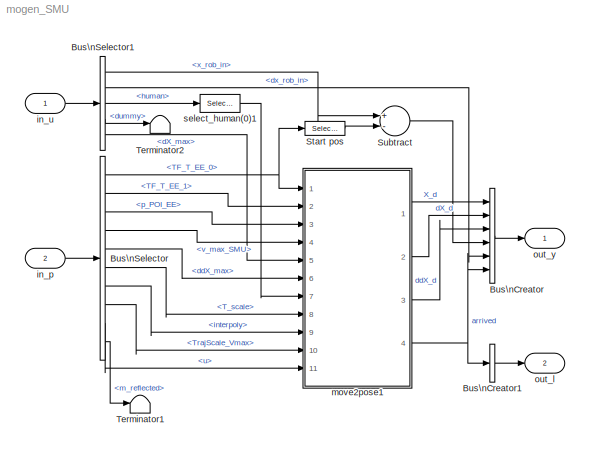
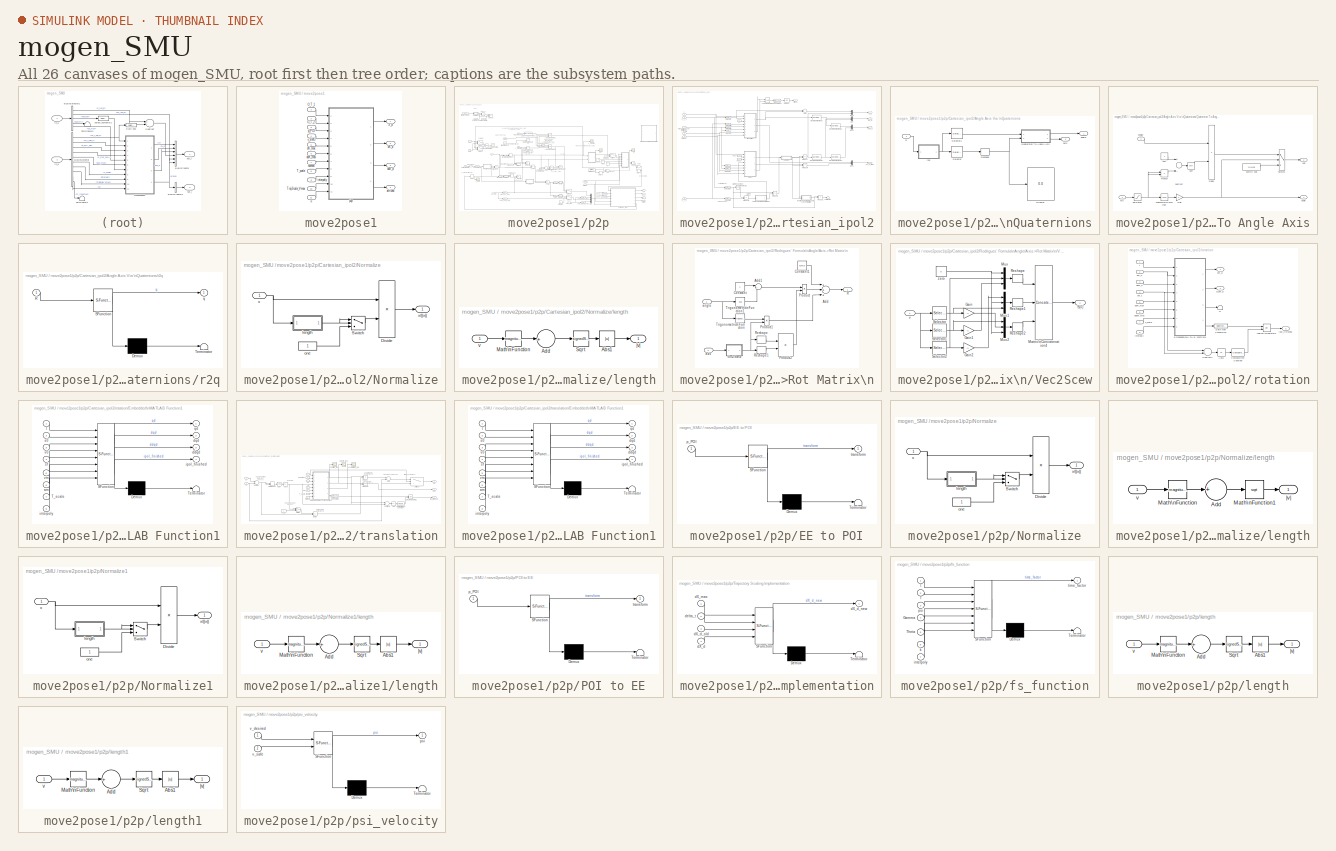
[diagram: thumbnail index - all 26 canvases of the model, root first then tree order]
MODEL mogen_SMU
KIND model
BLOCK [BusCreator] Bus\nCreator
  DisplayOption = bar
  InheritFromInputs = off
  Inputs = 6
  OutDataTypeStr = Bus: out_y
  Ports = [6, 1]
  SID = 5
BLOCK [BusCreator] Bus\nCreator1
  DisplayOption = bar
  InheritFromInputs = off
  Inputs = 1
  OutDataTypeStr = Bus: out_l
  Ports = [1, 1]
  SID = 6
BLOCK [BusSelector] Bus\nSelector
  OutputAsBus = off
  OutputSignals = TF_T_EE_0,TF_T_EE_1,p_POI_EE,v_max_SMU,ddX_max,T_scale,interpoly,TrajScale_Vmax,u,m_reflected
  Ports = [1, 10]
  SID = 7
BLOCK [BusSelector] Bus\nSelector1
  OutputAsBus = off
  OutputSignals = x_rob_in,dx_rob_in,human,dummy,dX_max
  Ports = [1, 5]
  SID = 8
BLOCK [Selector] Start pos
  IndexOptions = Index vector (dialog)
  Indices = [13:15]
  InputPortWidth = 16
  OutputSizes = 1
  Ports = [1, 1]
  SID = 9
BLOCK [Sum] Subtract
  InputSameDT = off
  Inputs = +-
  OutDataTypeStr = Inherit: Inherit via internal rule
  Ports = [2, 1]
  SID = 10
  SaturateOnIntegerOverflow = off
BLOCK [Terminator] Terminator1
  SID = 11
BLOCK [Terminator] Terminator2
  SID = 12
BLOCK [Inport] in_p
  IconDisplay = Port number
  OutDataTypeStr = Bus: in_p
  Port = 2
  SID = 2
BLOCK [Inport] in_u
  IconDisplay = Port number
  OutDataTypeStr = Bus: in_u
  SID = 1
BLOCK [SubSystem] move2pose1
  Ports = [11, 4]
  RequestExecContextInheritance = off
  SID = 13
BLOCK [Inport] move2pose1/O_T_1
  IconDisplay = Port number
  SID = 14
BLOCK [Inport] move2pose1/O_T_2
  IconDisplay = Port number
  Port = 2
  SID = 15
BLOCK [Inport] move2pose1/T_scale
  IconDisplay = Port number
  Port = 8
  SID = 21
BLOCK [Inport] move2pose1/TrajScale_Vmax
  IconDisplay = Port number
  Port = 10
  SID = 23
BLOCK [Outport] move2pose1/X_d
  IconDisplay = Port number
  SID = 335
BLOCK [Outport] move2pose1/arrived
  IconDisplay = Port number
  Port = 4
  SID = 338
BLOCK [Outport] move2pose1/dX_d
  IconDisplay = Port number
  Port = 2
  SID = 336
BLOCK [Inport] move2pose1/dX_max
  IconDisplay = Port number
  Port = 5
  SID = 18
BLOCK [Outport] move2pose1/ddX_d
  IconDisplay = Port number
  Port = 3
  SID = 337
BLOCK [Inport] move2pose1/ddX_max
  IconDisplay = Port number
  Port = 6
  SID = 19
BLOCK [Inport] move2pose1/human
  IconDisplay = Port number
  Port = 7
  SID = 20
BLOCK [Inport] move2pose1/interpoly
  IconDisplay = Port number
  Port = 9
  SID = 22
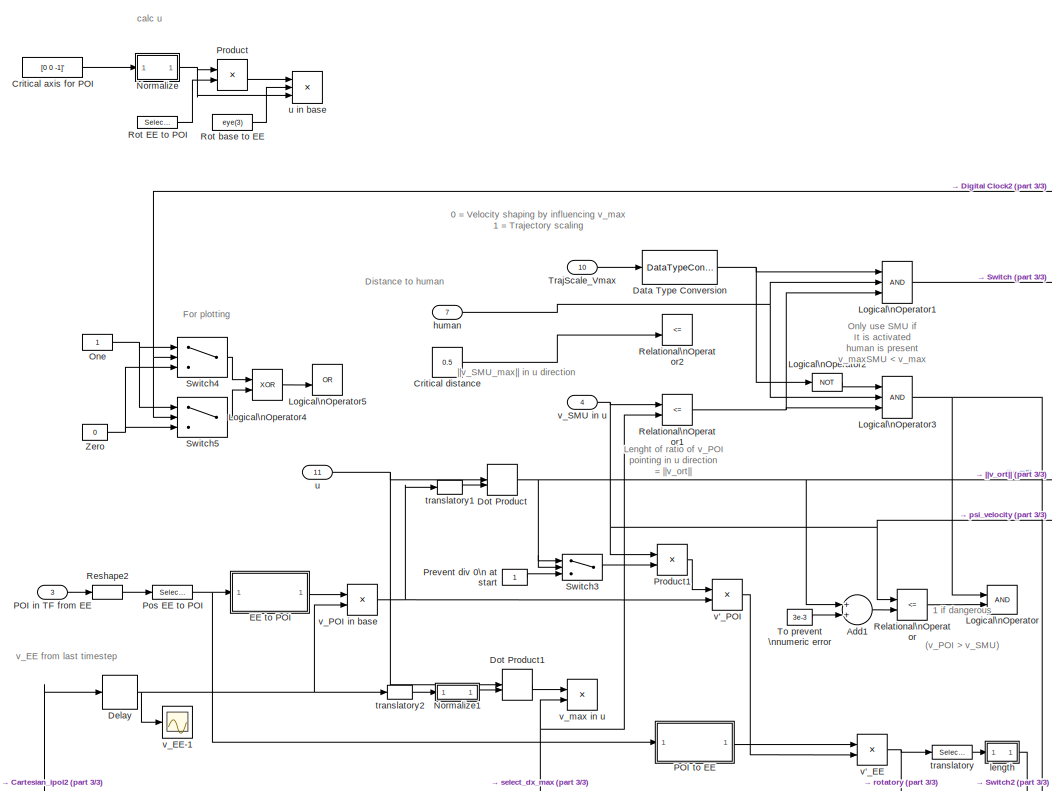
[diagram: move2pose1/p2p - part 1/3, left side, full height]
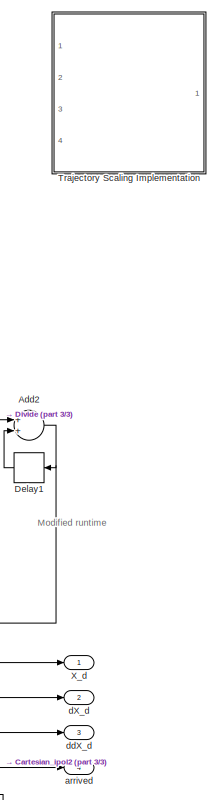
[diagram: move2pose1/p2p - part 2/3, right side, full height]
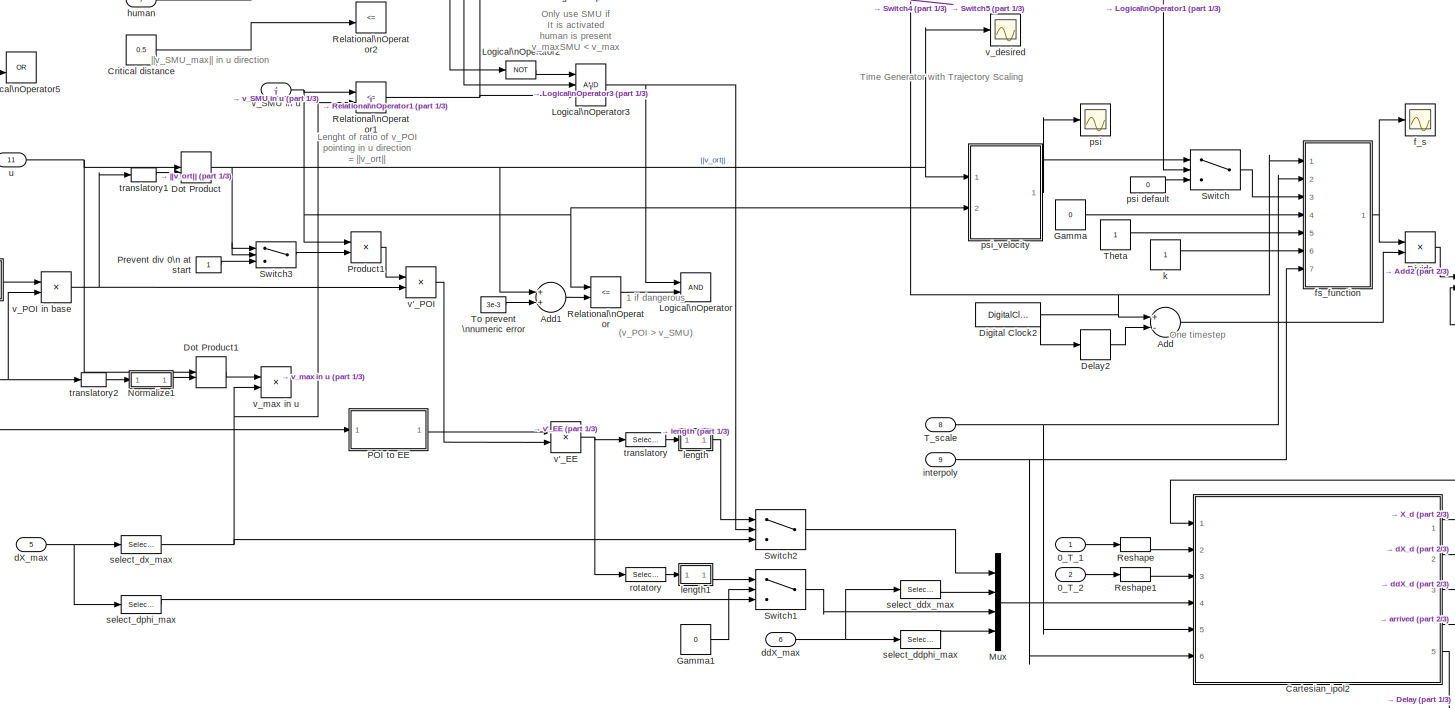
[diagram: move2pose1/p2p - part 3/3, full width, middle band]
BLOCK [SubSystem] move2pose1/p2p
  Ports = [11, 4]
  RequestExecContextInheritance = off
  SID = 25
BLOCK [Inport] move2pose1/p2p/0_T_1
  IconDisplay = Port number
  SID = 26
BLOCK [Inport] move2pose1/p2p/0_T_2
  IconDisplay = Port number
  Port = 2
  SID = 27
BLOCK [Sum] move2pose1/p2p/Add
  InputSameDT = off
  Inputs = +-
  OutDataTypeStr = Inherit: Inherit via internal rule
  Ports = [2, 1]
  SID = 37
  SaturateOnIntegerOverflow = off
BLOCK [Sum] move2pose1/p2p/Add1
  Commented = on
  InputSameDT = off
  OutDataTypeStr = Inherit: Inherit via internal rule
  Ports = [2, 1]
  SID = 38
  SaturateOnIntegerOverflow = off
BLOCK [Sum] move2pose1/p2p/Add2
  InputSameDT = off
  OutDataTypeStr = Inherit: Inherit via internal rule
  Ports = [2, 1]
  SID = 39
  SaturateOnIntegerOverflow = off
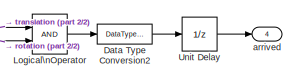
[diagram: move2pose1/p2p/Cartesian_ipol2 - part 1/2, top center region]
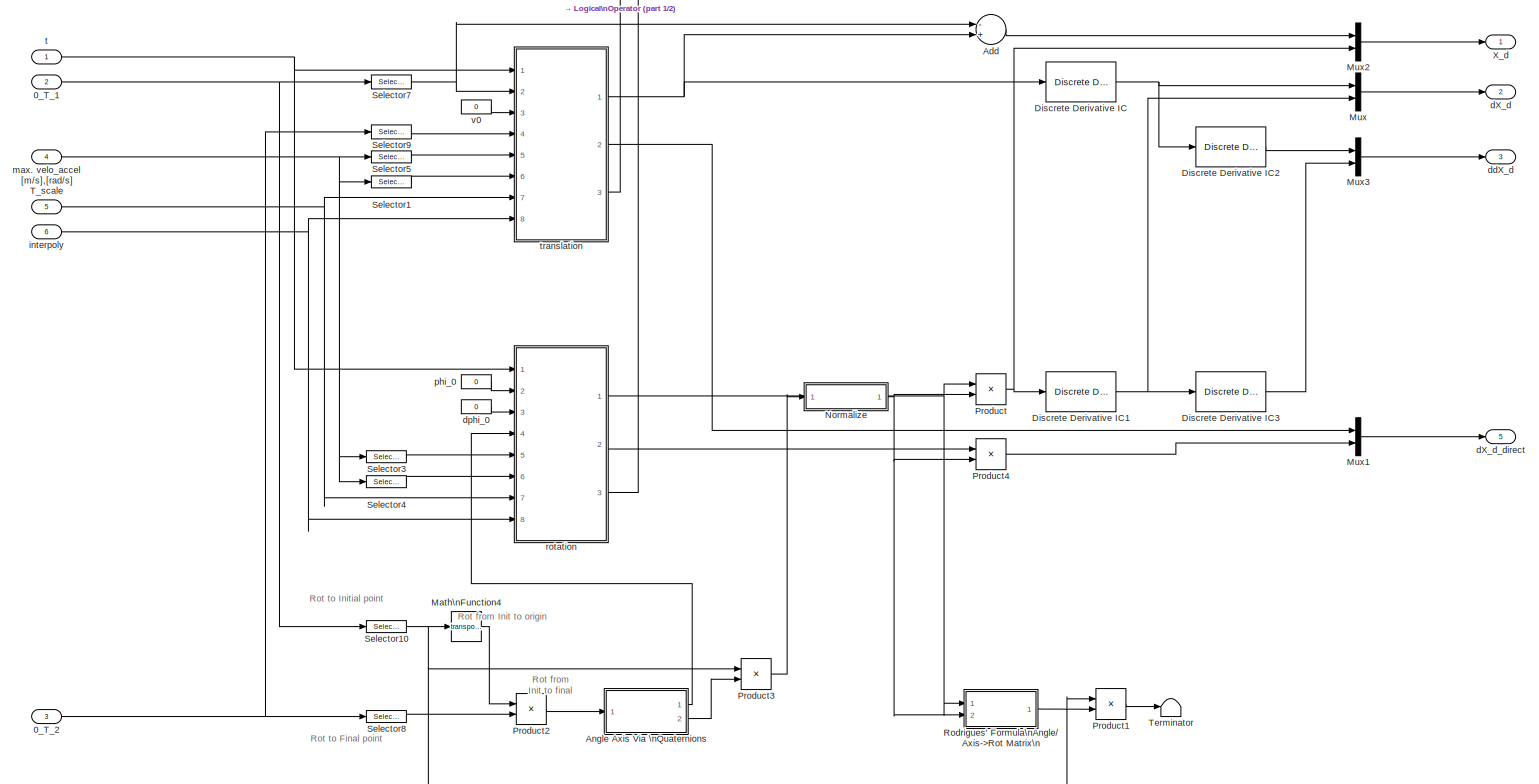
[diagram: move2pose1/p2p/Cartesian_ipol2 - part 2/2, most of the canvas]
BLOCK [SubSystem] move2pose1/p2p/Cartesian_ipol2
  Ports = [6, 5]
  RequestExecContextInheritance = off
  SID = 40
  TreatAsAtomicUnit = on
BLOCK [Inport] move2pose1/p2p/Cartesian_ipol2/0_T_1
  IconDisplay = Port number
  Port = 2
  SID = 42
BLOCK [Inport] move2pose1/p2p/Cartesian_ipol2/0_T_2
  IconDisplay = Port number
  Port = 3
  SID = 43
BLOCK [Sum] move2pose1/p2p/Cartesian_ipol2/Add
  InputSameDT = off
  Inputs = -+
  OutDataTypeStr = Inherit: Inherit via internal rule
  Ports = [2, 1]
  SID = 47
  SaturateOnIntegerOverflow = off
BLOCK [SubSystem] move2pose1/p2p/Cartesian_ipol2/Angle Axis Via \nQuaternions
  Ports = [1, 2]
  RequestExecContextInheritance = off
  SID = 48
BLOCK [Display] move2pose1/p2p/Cartesian_ipol2/Angle Axis Via \nQuaternions/Display
  Decimation = 1
  Ports = [1]
  SID = 50
BLOCK [SubSystem] move2pose1/p2p/Cartesian_ipol2/Angle Axis Via \nQuaternions/Quaternion To Angle Axis
  Ports = [2, 2]
  RequestExecContextInheritance = off
  SID = 51
BLOCK [Product] move2pose1/p2p/Cartesian_ipol2/Angle Axis Via \nQuaternions/Quaternion To Angle Axis/Divide
  InputSameDT = off
  Inputs = */
  OutDataTypeStr = Inherit: Inherit via internal rule
  Ports = [2, 1]
  RndMeth = Floor
  SID = 54
  SaturateOnIntegerOverflow = off
BLOCK [Gain] move2pose1/p2p/Cartesian_ipol2/Angle Axis Via \nQuaternions/Quaternion To Angle Axis/Gain
  Gain = 2
  OutDataTypeStr = Inherit: Inherit via internal rule
  ParamDataTypeStr = Inherit: Inherit via internal rule
  SID = 55
  SaturateOnIntegerOverflow = off
BLOCK [Product] move2pose1/p2p/Cartesian_ipol2/Angle Axis Via \nQuaternions/Quaternion To Angle Axis/Product
  InputSameDT = off
  OutDataTypeStr = Inherit: Inherit via internal rule
  Ports = [2, 1]
  SID = 56
  SaturateOnIntegerOverflow = off
BLOCK [Saturate] move2pose1/p2p/Cartesian_ipol2/Angle Axis Via \nQuaternions/Quaternion To Angle Axis/Saturation
  InputPortMap = u0
  LowerLimit = -1
  Ports = [1, 1]
  SID = 57
  UpperLimit = 1
BLOCK [Sqrt] move2pose1/p2p/Cartesian_ipol2/Angle Axis Via \nQuaternions/Quaternion To Angle Axis/Sqrt
  SID = 58
BLOCK [Sum] move2pose1/p2p/Cartesian_ipol2/Angle Axis Via \nQuaternions/Quaternion To Angle Axis/Subtract
  InputSameDT = off
  Inputs = +-
  OutDataTypeStr = Inherit: Inherit via internal rule
  Ports = [2, 1]
  SID = 59
  SaturateOnIntegerOverflow = off
BLOCK [Switch] move2pose1/p2p/Cartesian_ipol2/Angle Axis Via \nQuaternions/Quaternion To Angle Axis/Switch1
  Criteria = u2 ~= 0
  InputSameDT = off
  SID = 60
  SaturateOnIntegerOverflow = off
BLOCK [Trigonometry] move2pose1/p2p/Cartesian_ipol2/Angle Axis Via \nQuaternions/Quaternion To Angle Axis/Trigonometric\nFunction
  Operator = acos
  Ports = [1, 1]
  SID = 61
BLOCK [Outport] move2pose1/p2p/Cartesian_ipol2/Angle Axis Via \nQuaternions/Quaternion To Angle Axis/angle
  IconDisplay = Port number
  SID = 64
BLOCK [Outport] move2pose1/p2p/Cartesian_ipol2/Angle Axis Via \nQuaternions/Quaternion To Angle Axis/axis
  IconDisplay = Port number
  Port = 2
  SID = 65
BLOCK [Constant] move2pose1/p2p/Cartesian_ipol2/Angle Axis Via \nQuaternions/Quaternion To Angle Axis/dummy axis
  SID = 62
  Value = [1,0,0]
BLOCK [Inport] move2pose1/p2p/Cartesian_ipol2/Angle Axis Via \nQuaternions/Quaternion To Angle Axis/epsilon
  IconDisplay = Port number
  Port = 2
  SID = 53
BLOCK [Inport] move2pose1/p2p/Cartesian_ipol2/Angle Axis Via \nQuaternions/Quaternion To Angle Axis/eta
  IconDisplay = Port number
  SID = 52
BLOCK [Constant] move2pose1/p2p/Cartesian_ipol2/Angle Axis Via \nQuaternions/Quaternion To Angle Axis/one
  SID = 63
BLOCK [Inport] move2pose1/p2p/Cartesian_ipol2/Angle Axis Via \nQuaternions/R
  IconDisplay = Port number
  SID = 49
BLOCK [Reshape] move2pose1/p2p/Cartesian_ipol2/Angle Axis Via \nQuaternions/Reshape
  OutputDimensionality = Column vector (2-D)
  Ports = [1, 1]
  SID = 66
BLOCK [Selector] move2pose1/p2p/Cartesian_ipol2/Angle Axis Via \nQuaternions/Selector
  IndexOptions = Index vector (dialog)
  Indices = 2:4
  InputPortWidth = 4
  OutputSizes = 1
  Ports = [1, 1]
  SID = 67
BLOCK [Selector] move2pose1/p2p/Cartesian_ipol2/Angle Axis Via \nQuaternions/Selector1
  IndexOptions = Index vector (dialog)
  Indices = 1
  InputPortWidth = 4
  OutputSizes = 1
  Ports = [1, 1]
  SID = 68
BLOCK [Outport] move2pose1/p2p/Cartesian_ipol2/Angle Axis Via \nQuaternions/angle
  IconDisplay = Port number
  SID = 70
BLOCK [Outport] move2pose1/p2p/Cartesian_ipol2/Angle Axis Via \nQuaternions/axis
  IconDisplay = Port number
  Port = 2
  SID = 71
BLOCK [SubSystem] move2pose1/p2p/Cartesian_ipol2/Angle Axis Via \nQuaternions/r2q
  ErrorFcn = Stateflow.Translate.translate
  PermitHierarchicalResolution = ExplicitOnly
  Ports = [1, 1]
  RequestExecContextInheritance = off
  SFBlockType = MATLAB Function
  SID = 69
  TreatAsAtomicUnit = on
BLOCK [Demux] move2pose1/p2p/Cartesian_ipol2/Angle Axis Via \nQuaternions/r2q/ Demux 
  Outputs = 1
  Ports = [1, 1]
  SID = 69::227
BLOCK [S-Function] move2pose1/p2p/Cartesian_ipol2/Angle Axis Via \nQuaternions/r2q/ SFunction 
  EnableBusSupport = on
  FunctionName = sf_sfun
  PortCounts = [1 2]
  Ports = [1, 2]
  SFcnIsStateOwnerBlock = off
  SFunctionDeploymentMode = off
  SID = 69::226
  Tag = Stateflow S-Function mogen_SMU 2
BLOCK [Terminator] move2pose1/p2p/Cartesian_ipol2/Angle Axis Via \nQuaternions/r2q/ Terminator 
  SID = 69::228
BLOCK [Inport] move2pose1/p2p/Cartesian_ipol2/Angle Axis Via \nQuaternions/r2q/R
  IconDisplay = Port number
  SID = 69::1
BLOCK [Outport] move2pose1/p2p/Cartesian_ipol2/Angle Axis Via \nQuaternions/r2q/q
  IconDisplay = Port number
  SID = 69::5
BLOCK [DataTypeConversion] move2pose1/p2p/Cartesian_ipol2/Data Type Conversion2
  OutDataTypeStr = double
  RndMeth = Floor
  SID = 72
  SaturateOnIntegerOverflow = off
BLOCK [Reference] move2pose1/p2p/Cartesian_ipol2/Discrete Derivative IC  REF=utils/Discrete Derivative IC  (lib defined in mdl_b4a2d5202953, slx_566556b4cd74)
  Ports = [1, 1]
  SID = 73
  SourceBlock = utils/Discrete Derivative IC
  model_sample_time = model_sample_time
BLOCK [Reference] move2pose1/p2p/Cartesian_ipol2/Discrete Derivative IC1  REF=utils/Discrete Derivative IC  (lib defined in mdl_b4a2d5202953, slx_566556b4cd74)
  Ports = [1, 1]
  SID = 74
  SourceBlock = utils/Discrete Derivative IC
  model_sample_time = model_sample_time
BLOCK [Reference] move2pose1/p2p/Cartesian_ipol2/Discrete Derivative IC2  REF=utils/Discrete Derivative IC  (lib defined in mdl_b4a2d5202953, slx_566556b4cd74)
  Ports = [1, 1]
  SID = 75
  SourceBlock = utils/Discrete Derivative IC
  model_sample_time = model_sample_time
BLOCK [Reference] move2pose1/p2p/Cartesian_ipol2/Discrete Derivative IC3  REF=utils/Discrete Derivative IC  (lib defined in mdl_b4a2d5202953, slx_566556b4cd74)
  Ports = [1, 1]
  SID = 76
  SourceBlock = utils/Discrete Derivative IC
  model_sample_time = model_sample_time
BLOCK [Logic] move2pose1/p2p/Cartesian_ipol2/Logical\nOperator
  AllPortsSameDT = off
  OutDataTypeStr = boolean
  Ports = [2, 1]
  SID = 77
BLOCK [Math] move2pose1/p2p/Cartesian_ipol2/Math\nFunction4
  Operator = transpose
  Ports = [1, 1]
  SID = 78
BLOCK [Mux] move2pose1/p2p/Cartesian_ipol2/Mux
  DisplayOption = bar
  Inputs = 2
  Ports = [2, 1]
  SID = 79
BLOCK [Mux] move2pose1/p2p/Cartesian_ipol2/Mux1
  DisplayOption = bar
  Inputs = 2
  Ports = [2, 1]
  SID = 80
BLOCK [Mux] move2pose1/p2p/Cartesian_ipol2/Mux2
  DisplayOption = bar
  Inputs = 2
  Ports = [2, 1]
  SID = 81
BLOCK [Mux] move2pose1/p2p/Cartesian_ipol2/Mux3
  DisplayOption = bar
  Inputs = 2
  Ports = [2, 1]
  SID = 82
BLOCK [SubSystem] move2pose1/p2p/Cartesian_ipol2/Normalize
  Ports = [1, 1]
  RequestExecContextInheritance = off
  SID = 83
BLOCK [Product] move2pose1/p2p/Cartesian_ipol2/Normalize/Divide
  InputSameDT = off
  Inputs = */
  OutDataTypeStr = Inherit: Inherit via internal rule
  Ports = [2, 1]
  RndMeth = Floor
  SID = 85
  SaturateOnIntegerOverflow = off
BLOCK [Switch] move2pose1/p2p/Cartesian_ipol2/Normalize/Switch
  Criteria = u2 > Threshold
  InputSameDT = off
  SID = 86
  SaturateOnIntegerOverflow = off
BLOCK [SubSystem] move2pose1/p2p/Cartesian_ipol2/Normalize/length
  Ports = [1, 1]
  RequestExecContextInheritance = off
  SID = 87
BLOCK [Abs] move2pose1/p2p/Cartesian_ipol2/Normalize/length/Abs1
  SID = 89
  SaturateOnIntegerOverflow = off
BLOCK [Sum] move2pose1/p2p/Cartesian_ipol2/Normalize/length/Add
  InputSameDT = off
  Inputs = +
  OutDataTypeStr = Inherit: Inherit via internal rule
  Ports = [1, 1]
  SID = 90
  SaturateOnIntegerOverflow = off
BLOCK [Math] move2pose1/p2p/Cartesian_ipol2/Normalize/length/Math\nFunction
  Operator = magnitude^2
  Ports = [1, 1]
  SID = 91
BLOCK [Sqrt] move2pose1/p2p/Cartesian_ipol2/Normalize/length/Sqrt
  Operator = signedSqrt
  SID = 92
BLOCK [Inport] move2pose1/p2p/Cartesian_ipol2/Normalize/length/v
  IconDisplay = Port number
  SID = 88
BLOCK [Outport] move2pose1/p2p/Cartesian_ipol2/Normalize/length/|v|
  IconDisplay = Port number
  SID = 93
BLOCK [Constant] move2pose1/p2p/Cartesian_ipol2/Normalize/one
  SID = 94
BLOCK [Inport] move2pose1/p2p/Cartesian_ipol2/Normalize/x
  IconDisplay = Port number
  SID = 84
BLOCK [Outport] move2pose1/p2p/Cartesian_ipol2/Normalize/x//||x||
  IconDisplay = Port number
  SID = 95
BLOCK [Product] move2pose1/p2p/Cartesian_ipol2/Product
  InputSameDT = off
  OutDataTypeStr = Inherit: Inherit via internal rule
  Ports = [2, 1]
  RndMeth = Floor
  SID = 96
  SaturateOnIntegerOverflow = off
BLOCK [Product] move2pose1/p2p/Cartesian_ipol2/Product1
  Commented = on
  InputSameDT = off
  Multiplication = Matrix(*)
  OutDataTypeStr = Inherit: Inherit via internal rule
  Ports = [2, 1]
  SID = 97
  SaturateOnIntegerOverflow = off
BLOCK [Product] move2pose1/p2p/Cartesian_ipol2/Product2
  InputSameDT = off
  Multiplication = Matrix(*)
  OutDataTypeStr = Inherit: Inherit via internal rule
  Ports = [2, 1]
  SID = 98
  SaturateOnIntegerOverflow = off
BLOCK [Product] move2pose1/p2p/Cartesian_ipol2/Product3
  InputSameDT = off
  Multiplication = Matrix(*)
  OutDataTypeStr = Inherit: Inherit via internal rule
  Ports = [2, 1]
  RndMeth = Floor
  SID = 99
  SaturateOnIntegerOverflow = off
BLOCK [Product] move2pose1/p2p/Cartesian_ipol2/Product4
  InputSameDT = off
  OutDataTypeStr = Inherit: Inherit via internal rule
  Ports = [2, 1]
  RndMeth = Floor
  SID = 100
  SaturateOnIntegerOverflow = off
BLOCK [SubSystem] move2pose1/p2p/Cartesian_ipol2/Rodrigues' Formula\nAngle//Axis->Rot Matrix\n
  Commented = on
  Ports = [2, 1]
  RequestExecContextInheritance = off
  SID = 101
BLOCK [Sum] move2pose1/p2p/Cartesian_ipol2/Rodrigues' Formula\nAngle//Axis->Rot Matrix\n/Add
  InputSameDT = off
  Inputs = +++
  OutDataTypeStr = Inherit: Inherit via internal rule
  Ports = [3, 1]
  SID = 104
  SaturateOnIntegerOverflow = off
BLOCK [Sum] move2pose1/p2p/Cartesian_ipol2/Rodrigues' Formula\nAngle//Axis->Rot Matrix\n/Add1
  IconShape = round
  InputSameDT = off
  Inputs = |+-
  OutDataTypeStr = Inherit: Inherit via internal rule
  Ports = [2, 1]
  SID = 105
  SaturateOnIntegerOverflow = off
BLOCK [Constant] move2pose1/p2p/Cartesian_ipol2/Rodrigues' Formula\nAngle//Axis->Rot Matrix\n/Constant
  SID = 106
BLOCK [Constant] move2pose1/p2p/Cartesian_ipol2/Rodrigues' Formula\nAngle//Axis->Rot Matrix\n/Constant1
  SID = 107
  Value = eye(3)
BLOCK [Product] move2pose1/p2p/Cartesian_ipol2/Rodrigues' Formula\nAngle//Axis->Rot Matrix\n/Product
  InputSameDT = off
  OutDataTypeStr = Inherit: Inherit via internal rule
  Ports = [2, 1]
  SID = 108
  SaturateOnIntegerOverflow = off
BLOCK [Product] move2pose1/p2p/Cartesian_ipol2/Rodrigues' Formula\nAngle//Axis->Rot Matrix\n/Product1
  InputSameDT = off
  OutDataTypeStr = Inherit: Inherit via internal rule
  Ports = [2, 1]
  SID = 109
  SaturateOnIntegerOverflow = off
BLOCK [Product] move2pose1/p2p/Cartesian_ipol2/Rodrigues' Formula\nAngle//Axis->Rot Matrix\n/Product2
  InputSameDT = off
  Multiplication = Matrix(*)
  OutDataTypeStr = Inherit: Inherit via internal rule
  Ports = [2, 1]
  SID = 110
  SaturateOnIntegerOverflow = off
BLOCK [Outport] move2pose1/p2p/Cartesian_ipol2/Rodrigues' Formula\nAngle//Axis->Rot Matrix\n/R
  IconDisplay = Port number
  SID = 132
BLOCK [Reshape] move2pose1/p2p/Cartesian_ipol2/Rodrigues' Formula\nAngle//Axis->Rot Matrix\n/Reshape
  OutputDimensionality = Customize
  OutputDimensions = [3,3]
  Ports = [1, 1]
  SID = 111
BLOCK [Reshape] move2pose1/p2p/Cartesian_ipol2/Rodrigues' Formula\nAngle//Axis->Rot Matrix\n/Reshape1
  OutputDimensionality = Customize
  OutputDimensions = [3,3]
  Ports = [1, 1]
  SID = 112
BLOCK [Trigonometry] move2pose1/p2p/Cartesian_ipol2/Rodrigues' Formula\nAngle//Axis->Rot Matrix\n/Trigonometric\nFunction
  Ports = [1, 1]
  SID = 113
BLOCK [Trigonometry] move2pose1/p2p/Cartesian_ipol2/Rodrigues' Formula\nAngle//Axis->Rot Matrix\n/Trigonometric\nFunction1
  Operator = cos
  Ports = [1, 1]
  SID = 114
BLOCK [SubSystem] move2pose1/p2p/Cartesian_ipol2/Rodrigues' Formula\nAngle//Axis->Rot Matrix\n/Vec2Scew
  Ports = [1, 1]
  RequestExecContextInheritance = off
  SID = 115
BLOCK [Gain] move2pose1/p2p/Cartesian_ipol2/Rodrigues' Formula\nAngle//Axis->Rot Matrix\n/Vec2Scew/Gain
  Gain = -1
  SID = 117
BLOCK [Gain] move2pose1/p2p/Cartesian_ipol2/Rodrigues' Formula\nAngle//Axis->Rot Matrix\n/Vec2Scew/Gain1
  Gain = -1
  SID = 118
BLOCK [Gain] move2pose1/p2p/Cartesian_ipol2/Rodrigues' Formula\nAngle//Axis->Rot Matrix\n/Vec2Scew/Gain2
  Gain = -1
  SID = 119
BLOCK [Concatenate] move2pose1/p2p/Cartesian_ipol2/Rodrigues' Formula\nAngle//Axis->Rot Matrix\n/Vec2Scew/Matrix\nConcatenation4
  ConcatenateDimension = 2
  Mode = Multidimensional array
  NumInputs = 3
  Ports = [3, 1]
  SID = 120
BLOCK [Mux] move2pose1/p2p/Cartesian_ipol2/Rodrigues' Formula\nAngle//Axis->Rot Matrix\n/Vec2Scew/Mux
  DisplayOption = bar
  Inputs = 3
  Ports = [3, 1]
  SID = 121
BLOCK [Mux] move2pose1/p2p/Cartesian_ipol2/Rodrigues' Formula\nAngle//Axis->Rot Matrix\n/Vec2Scew/Mux1
  DisplayOption = bar
  Inputs = 3
  Ports = [3, 1]
  SID = 122
BLOCK [Mux] move2pose1/p2p/Cartesian_ipol2/Rodrigues' Formula\nAngle//Axis->Rot Matrix\n/Vec2Scew/Mux2
  DisplayOption = bar
  Inputs = 3
  Ports = [3, 1]
  SID = 123
BLOCK [Reshape] move2pose1/p2p/Cartesian_ipol2/Rodrigues' Formula\nAngle//Axis->Rot Matrix\n/Vec2Scew/Reshape
  OutputDimensionality = Customize
  OutputDimensions = [3,1]
  Ports = [1, 1]
  SID = 124
BLOCK [Reshape] move2pose1/p2p/Cartesian_ipol2/Rodrigues' Formula\nAngle//Axis->Rot Matrix\n/Vec2Scew/Reshape1
  OutputDimensionality = Customize
  OutputDimensions = [3,1]
  Ports = [1, 1]
  SID = 125
BLOCK [Reshape] move2pose1/p2p/Cartesian_ipol2/Rodrigues' Formula\nAngle//Axis->Rot Matrix\n/Vec2Scew/Reshape2
  OutputDimensionality = Customize
  OutputDimensions = [3,1]
  Ports = [1, 1]
  SID = 126
BLOCK [Outport] move2pose1/p2p/Cartesian_ipol2/Rodrigues' Formula\nAngle//Axis->Rot Matrix\n/Vec2Scew/S(v)
  IconDisplay = Port number
  SID = 131
BLOCK [Selector] move2pose1/p2p/Cartesian_ipol2/Rodrigues' Formula\nAngle//Axis->Rot Matrix\n/Vec2Scew/Selector
  IndexOptions = Index vector (dialog)
  Indices = [1]
  InputPortWidth = 3
  OutputSizes = 1
  Ports = [1, 1]
  SID = 127
BLOCK [Selector] move2pose1/p2p/Cartesian_ipol2/Rodrigues' Formula\nAngle//Axis->Rot Matrix\n/Vec2Scew/Selector1
  IndexOptions = Index vector (dialog)
  Indices = [2]
  InputPortWidth = 3
  OutputSizes = 1
  Ports = [1, 1]
  SID = 128
BLOCK [Selector] move2pose1/p2p/Cartesian_ipol2/Rodrigues' Formula\nAngle//Axis->Rot Matrix\n/Vec2Scew/Selector2
  IndexOptions = Index vector (dialog)
  Indices = [3]
  InputPortWidth = 3
  OutputSizes = 1
  Ports = [1, 1]
  SID = 129
BLOCK [Inport] move2pose1/p2p/Cartesian_ipol2/Rodrigues' Formula\nAngle//Axis->Rot Matrix\n/Vec2Scew/v
  IconDisplay = Port number
  SID = 116
BLOCK [Constant] move2pose1/p2p/Cartesian_ipol2/Rodrigues' Formula\nAngle//Axis->Rot Matrix\n/Vec2Scew/zero
  SID = 130
  Value = 0
BLOCK [Inport] move2pose1/p2p/Cartesian_ipol2/Rodrigues' Formula\nAngle//Axis->Rot Matrix\n/angle
  IconDisplay = Port number
  SID = 102
BLOCK [Inport] move2pose1/p2p/Cartesian_ipol2/Rodrigues' Formula\nAngle//Axis->Rot Matrix\n/axis
  IconDisplay = Port number
  Port = 2
  SID = 103
BLOCK [Selector] move2pose1/p2p/Cartesian_ipol2/Selector1
  IndexOptions = Index vector (dialog)
  Indices = 2
  InputPortWidth = 4
  OutputSizes = 1
  Ports = [1, 1]
  SID = 133
BLOCK [Selector] move2pose1/p2p/Cartesian_ipol2/Selector10
  IndexOptions = Index vector (dialog),Index vector (dialog)
  Indices = [1:3],[1:3]
  InputPortWidth = 7
  NumberOfDimensions = 2
  OutputSizes = 1
  Ports = [1, 1]
  SID = 134
BLOCK [Selector] move2pose1/p2p/Cartesian_ipol2/Selector3
  IndexOptions = Index vector (dialog)
  Indices = 3
  InputPortWidth = 4
  OutputSizes = 1
  Ports = [1, 1]
  SID = 135
BLOCK [Selector] move2pose1/p2p/Cartesian_ipol2/Selector4
  IndexOptions = Index vector (dialog)
  Indices = 4
  InputPortWidth = 4
  OutputSizes = 1
  Ports = [1, 1]
  SID = 136
BLOCK [Selector] move2pose1/p2p/Cartesian_ipol2/Selector5
  IndexOptions = Index vector (dialog)
  Indices = 1
  InputPortWidth = 4
  OutputSizes = 1
  Ports = [1, 1]
  SID = 137
BLOCK [Selector] move2pose1/p2p/Cartesian_ipol2/Selector7
  IndexOptions = Index vector (dialog),Index vector (dialog)
  Indices = [1:3],[4]
  InputPortWidth = 7
  NumberOfDimensions = 2
  OutputSizes = 1
  Ports = [1, 1]
  SID = 138
BLOCK [Selector] move2pose1/p2p/Cartesian_ipol2/Selector8
  IndexOptions = Index vector (dialog),Index vector (dialog)
  Indices = [1:3],[1:3]
  InputPortWidth = 7
  NumberOfDimensions = 2
  OutputSizes = 1
  Ports = [1, 1]
  SID = 139
BLOCK [Selector] move2pose1/p2p/Cartesian_ipol2/Selector9
  IndexOptions = Index vector (dialog),Index vector (dialog)
  Indices = [1:3],[4]
  InputPortWidth = 7
  NumberOfDimensions = 2
  OutputSizes = 1
  Ports = [1, 1]
  SID = 140
BLOCK [Inport] move2pose1/p2p/Cartesian_ipol2/T_scale
  IconDisplay = Port number
  Port = 5
  SID = 45
BLOCK [Terminator] move2pose1/p2p/Cartesian_ipol2/Terminator
  Commented = on
  SID = 141
BLOCK [UnitDelay] move2pose1/p2p/Cartesian_ipol2/Unit Delay
  SID = 142
  SampleTime = -1
BLOCK [Outport] move2pose1/p2p/Cartesian_ipol2/X_d
  IconDisplay = Port number
  SID = 206
BLOCK [Outport] move2pose1/p2p/Cartesian_ipol2/arrived
  IconDisplay = Port number
  Port = 4
  SID = 209
BLOCK [Outport] move2pose1/p2p/Cartesian_ipol2/dX_d
  IconDisplay = Port number
  Port = 2
  SID = 207
BLOCK [Outport] move2pose1/p2p/Cartesian_ipol2/dX_d_direct
  IconDisplay = Port number
  Port = 5
  SID = 210
BLOCK [Outport] move2pose1/p2p/Cartesian_ipol2/ddX_d
  IconDisplay = Port number
  Port = 3
  SID = 208
BLOCK [Constant] move2pose1/p2p/Cartesian_ipol2/dphi_0
  SID = 143
  Value = 0
BLOCK [Inport] move2pose1/p2p/Cartesian_ipol2/interpoly
  IconDisplay = Port number
  Port = 6
  SID = 46
BLOCK [Inport] move2pose1/p2p/Cartesian_ipol2/max. velo_accel [m//s],[rad//s]
  IconDisplay = Port number
  Port = 4
  SID = 44
BLOCK [Constant] move2pose1/p2p/Cartesian_ipol2/phi_0
  SID = 144
  Value = 0
BLOCK [SubSystem] move2pose1/p2p/Cartesian_ipol2/rotation
  Ports = [8, 3]
  RequestExecContextInheritance = off
  SID = 145
BLOCK [Abs] move2pose1/p2p/Cartesian_ipol2/rotation/Abs1
  SID = 154
  SaturateOnIntegerOverflow = off
BLOCK [Reference] move2pose1/p2p/Cartesian_ipol2/rotation/Compare\nTo Constant  REF=simulink/Logic and Bit\nOperations/Compare\nTo Constant
  OutDataTypeStr = boolean
  Ports = [1, 1]
  SID = 155
  SourceBlock = simulink/Logic and Bit\nOperations/Compare\nTo Constant
  SourceProductBaseCode = SL
  SourceProductName = Simulink
  SourceType = Compare To Constant
  ZeroCross = on
  const = 1e-9
  relop = <=
BLOCK [DataTypeConversion] move2pose1/p2p/Cartesian_ipol2/rotation/Data Type Conversion
  OutDataTypeStr = boolean
  RndMeth = Floor
  SID = 156
  SaturateOnIntegerOverflow = off
BLOCK [SubSystem] move2pose1/p2p/Cartesian_ipol2/rotation/Embedded\nMATLAB Function1
  ErrorFcn = Stateflow.Translate.translate
  PermitHierarchicalResolution = ExplicitOnly
  Ports = [8, 4]
  RequestExecContextInheritance = off
  SFBlockType = MATLAB Function
  SID = 157
  TreatAsAtomicUnit = on
BLOCK [Demux] move2pose1/p2p/Cartesian_ipol2/rotation/Embedded\nMATLAB Function1/ Demux 
  Outputs = 1
  Ports = [1, 1]
  SID = 157::136376
BLOCK [S-Function] move2pose1/p2p/Cartesian_ipol2/rotation/Embedded\nMATLAB Function1/ SFunction 
  EnableBusSupport = on
  FunctionName = sf_sfun
  PortCounts = [8 5]
  Ports = [8, 5]
  SFcnIsStateOwnerBlock = off
  SFunctionDeploymentMode = off
  SID = 157::136375
  Tag = Stateflow S-Function mogen_SMU 3
BLOCK [Terminator] move2pose1/p2p/Cartesian_ipol2/rotation/Embedded\nMATLAB Function1/ Terminator 
  SID = 157::136377
BLOCK [Inport] move2pose1/p2p/Cartesian_ipol2/rotation/Embedded\nMATLAB Function1/T_scale
  IconDisplay = Port number
  Port = 7
  SID = 157::136382
BLOCK [Inport] move2pose1/p2p/Cartesian_ipol2/rotation/Embedded\nMATLAB Function1/am
  IconDisplay = Port number
  Port = 6
  SID = 157::136249
BLOCK [Outport] move2pose1/p2p/Cartesian_ipol2/rotation/Embedded\nMATLAB Function1/ddqd
  IconDisplay = Port number
  Port = 3
  SID = 157::136252
BLOCK [Outport] move2pose1/p2p/Cartesian_ipol2/rotation/Embedded\nMATLAB Function1/dqd
  IconDisplay = Port number
  Port = 2
  SID = 157::136251
BLOCK [Inport] move2pose1/p2p/Cartesian_ipol2/rotation/Embedded\nMATLAB Function1/interpoly
  IconDisplay = Port number
  Port = 8
  SID = 157::136383
BLOCK [Outport] move2pose1/p2p/Cartesian_ipol2/rotation/Embedded\nMATLAB Function1/ipol_finished
  IconDisplay = Port number
  Port = 4
  SID = 157::136381
BLOCK [Outport] move2pose1/p2p/Cartesian_ipol2/rotation/Embedded\nMATLAB Function1/qd
  IconDisplay = Port number
  SID = 157::136250
BLOCK [Inport] move2pose1/p2p/Cartesian_ipol2/rotation/Embedded\nMATLAB Function1/s0
  IconDisplay = Port number
  Port = 2
  SID = 157::136245
BLOCK [Inport] move2pose1/p2p/Cartesian_ipol2/rotation/Embedded\nMATLAB Function1/sf
  IconDisplay = Port number
  Port = 4
  SID = 157::136247
BLOCK [Inport] move2pose1/p2p/Cartesian_ipol2/rotation/Embedded\nMATLAB Function1/t
  IconDisplay = Port number
  SID = 157::136240
BLOCK [Inport] move2pose1/p2p/Cartesian_ipol2/rotation/Embedded\nMATLAB Function1/v0
  IconDisplay = Port number
  Port = 3
  SID = 157::136246
BLOCK [Inport] move2pose1/p2p/Cartesian_ipol2/rotation/Embedded\nMATLAB Function1/vm
  IconDisplay = Port number
  Port = 5
  SID = 157::136248
BLOCK [Logic] move2pose1/p2p/Cartesian_ipol2/rotation/Logical\nOperator2
  AllPortsSameDT = off
  Operator = OR
  OutDataTypeStr = boolean
  Ports = [2, 1]
  SID = 158
BLOCK [Sum] move2pose1/p2p/Cartesian_ipol2/rotation/Subtract1
  InputSameDT = off
  Inputs = -+
  OutDataTypeStr = Inherit: Inherit via internal rule
  Ports = [2, 1]
  SID = 159
  SaturateOnIntegerOverflow = off
BLOCK [Terminator] move2pose1/p2p/Cartesian_ipol2/rotation/T7
  SID = 160
BLOCK [Inport] move2pose1/p2p/Cartesian_ipol2/rotation/T_scale
  IconDisplay = Port number
  Port = 7
  SID = 152
BLOCK [Outport] move2pose1/p2p/Cartesian_ipol2/rotation/d_phi_d
  IconDisplay = Port number
  Port = 2
  SID = 162
BLOCK [Inport] move2pose1/p2p/Cartesian_ipol2/rotation/ddphi_max
  IconDisplay = Port number
  Port = 6
  SID = 151
BLOCK [Inport] move2pose1/p2p/Cartesian_ipol2/rotation/dphi_0
  IconDisplay = Port number
  Port = 3
  SID = 148
BLOCK [Inport] move2pose1/p2p/Cartesian_ipol2/rotation/dphi_max
  IconDisplay = Port number
  Port = 5
  SID = 150
BLOCK [Inport] move2pose1/p2p/Cartesian_ipol2/rotation/interpoly
  IconDisplay = Port number
  Port = 8
  SID = 153
BLOCK [Outport] move2pose1/p2p/Cartesian_ipol2/rotation/ipol_finished
  IconDisplay = Port number
  Port = 3
  SID = 163
BLOCK [Inport] move2pose1/p2p/Cartesian_ipol2/rotation/phi_0
  IconDisplay = Port number
  Port = 2
  SID = 147
BLOCK [Outport] move2pose1/p2p/Cartesian_ipol2/rotation/phi_d
  IconDisplay = Port number
  SID = 161
BLOCK [Inport] move2pose1/p2p/Cartesian_ipol2/rotation/phi_f
  IconDisplay = Port number
  Port = 4
  SID = 149
BLOCK [Inport] move2pose1/p2p/Cartesian_ipol2/rotation/t
  IconDisplay = Port number
  SID = 146
BLOCK [Inport] move2pose1/p2p/Cartesian_ipol2/t
  IconDisplay = Port number
  SID = 41
BLOCK [SubSystem] move2pose1/p2p/Cartesian_ipol2/translation
  Ports = [8, 3]
  RequestExecContextInheritance = off
  SID = 164
BLOCK [Abs] move2pose1/p2p/Cartesian_ipol2/translation/Abs
  SID = 173
  SaturateOnIntegerOverflow = off
BLOCK [Abs] move2pose1/p2p/Cartesian_ipol2/translation/Abs1
  SID = 174
  SaturateOnIntegerOverflow = off
BLOCK [Scope] move2pose1/p2p/Cartesian_ipol2/translation/Acceleration_real
  Floating = off
  NumInputPorts = 1
  Ports = [1]
  SID = 175
  ScopeSpecificationString = Simulink.scopes.TimeScopeBlockCfg('CurrentConfiguration', extmgr.ConfigurationSet(extmgr.Configuration('Core','General UI',true),extmgr.Configuration('Core','Source UI',true),extmgr.Configuration('Sources','WiredSimulink',true,'DataLoggingVariableName','ScopeData1'),extmgr.Configuration('Visuals','Time Domain',true,'SerializedDisplays',{struct('MinYLimReal','-0.97176','MaxYLimReal','0.48428','YLab...<+1489ch>
BLOCK [Sum] move2pose1/p2p/Cartesian_ipol2/translation/Add
  InputSameDT = off
  OutDataTypeStr = Inherit: Inherit via internal rule
  Ports = [2, 1]
  SID = 176
  SaturateOnIntegerOverflow = off
BLOCK [Reference] move2pose1/p2p/Cartesian_ipol2/translation/Compare\nTo Constant  REF=simulink/Logic and Bit\nOperations/Compare\nTo Constant
  OutDataTypeStr = boolean
  Ports = [1, 1]
  SID = 177
  SourceBlock = simulink/Logic and Bit\nOperations/Compare\nTo Constant
  SourceProductBaseCode = SL
  SourceProductName = Simulink
  SourceType = Compare To Constant
  ZeroCross = on
  const = 1e-9
  relop = <=
BLOCK [Constant] move2pose1/p2p/Cartesian_ipol2/translation/Constant
  SID = 178
  Value = 0
BLOCK [DataTypeConversion] move2pose1/p2p/Cartesian_ipol2/translation/Data Type Conversion
  OutDataTypeStr = boolean
  RndMeth = Floor
  SID = 179
  SaturateOnIntegerOverflow = off
BLOCK [Product] move2pose1/p2p/Cartesian_ipol2/translation/Divide
  InputSameDT = off
  Inputs = /*
  OutDataTypeStr = Inherit: Inherit via internal rule
  Ports = [2, 1]
  RndMeth = Floor
  SID = 180
  SaturateOnIntegerOverflow = off
BLOCK [DotProduct] move2pose1/p2p/Cartesian_ipol2/translation/Dot Product
  OutDataTypeStr = Inherit: Inherit via internal rule
  OutMin = 0
  SID = 181
BLOCK [SubSystem] move2pose1/p2p/Cartesian_ipol2/translation/Embedded\nMATLAB Function1
  ErrorFcn = Stateflow.Translate.translate
  PermitHierarchicalResolution = ExplicitOnly
  Ports = [8, 4]
  RequestExecContextInheritance = off
  SFBlockType = MATLAB Function
  SID = 182
  TreatAsAtomicUnit = on
BLOCK [Demux] move2pose1/p2p/Cartesian_ipol2/translation/Embedded\nMATLAB Function1/ Demux 
  Outputs = 1
  Ports = [1, 1]
  SID = 182::136376
BLOCK [S-Function] move2pose1/p2p/Cartesian_ipol2/translation/Embedded\nMATLAB Function1/ SFunction 
  EnableBusSupport = on
  FunctionName = sf_sfun
  PortCounts = [8 5]
  Ports = [8, 5]
  SFcnIsStateOwnerBlock = off
  SFunctionDeploymentMode = off
  SID = 182::136375
  Tag = Stateflow S-Function mogen_SMU 4
BLOCK [Terminator] move2pose1/p2p/Cartesian_ipol2/translation/Embedded\nMATLAB Function1/ Terminator 
  SID = 182::136377
BLOCK [Inport] move2pose1/p2p/Cartesian_ipol2/translation/Embedded\nMATLAB Function1/T_scale
  IconDisplay = Port number
  Port = 7
  SID = 182::136382
BLOCK [Inport] move2pose1/p2p/Cartesian_ipol2/translation/Embedded\nMATLAB Function1/am
  IconDisplay = Port number
  Port = 6
  SID = 182::136249
BLOCK [Outport] move2pose1/p2p/Cartesian_ipol2/translation/Embedded\nMATLAB Function1/ddqd
  IconDisplay = Port number
  Port = 3
  SID = 182::136252
BLOCK [Outport] move2pose1/p2p/Cartesian_ipol2/translation/Embedded\nMATLAB Function1/dqd
  IconDisplay = Port number
  Port = 2
  SID = 182::136251
BLOCK [Inport] move2pose1/p2p/Cartesian_ipol2/translation/Embedded\nMATLAB Function1/interpoly
  IconDisplay = Port number
  Port = 8
  SID = 182::136383
BLOCK [Outport] move2pose1/p2p/Cartesian_ipol2/translation/Embedded\nMATLAB Function1/ipol_finished
  IconDisplay = Port number
  Port = 4
  SID = 182::136381
BLOCK [Outport] move2pose1/p2p/Cartesian_ipol2/translation/Embedded\nMATLAB Function1/qd
  IconDisplay = Port number
  SID = 182::136250
BLOCK [Inport] move2pose1/p2p/Cartesian_ipol2/translation/Embedded\nMATLAB Function1/s0
  IconDisplay = Port number
  Port = 2
  SID = 182::136245
BLOCK [Inport] move2pose1/p2p/Cartesian_ipol2/translation/Embedded\nMATLAB Function1/sf
  IconDisplay = Port number
  Port = 4
  SID = 182::136247
BLOCK [Inport] move2pose1/p2p/Cartesian_ipol2/translation/Embedded\nMATLAB Function1/t
  IconDisplay = Port number
  SID = 182::136240
BLOCK [Inport] move2pose1/p2p/Cartesian_ipol2/translation/Embedded\nMATLAB Function1/v0
  IconDisplay = Port number
  Port = 3
  SID = 182::136246
BLOCK [Inport] move2pose1/p2p/Cartesian_ipol2/translation/Embedded\nMATLAB Function1/vm
  IconDisplay = Port number
  Port = 5
  SID = 182::136248
BLOCK [Logic] move2pose1/p2p/Cartesian_ipol2/translation/Logical\nOperator1
  AllPortsSameDT = off
  Operator = OR
  OutDataTypeStr = boolean
  Ports = [2, 1]
  SID = 183
BLOCK [Scope] move2pose1/p2p/Cartesian_ipol2/translation/Position_real
  Floating = off
  NumInputPorts = 1
  Ports = [1]
  SID = 184
  ScopeSpecificationString = Simulink.scopes.TimeScopeBlockCfg('CurrentConfiguration', extmgr.ConfigurationSet(extmgr.Configuration('Core','General UI',true),extmgr.Configuration('Core','Source UI',true),extmgr.Configuration('Sources','WiredSimulink',true,'DataLoggingVariableName','ScopeData2'),extmgr.Configuration('Visuals','Time Domain',true,'SerializedDisplays',{struct('MinYLimReal','-0.05833','MaxYLimReal','0.52494','YLab...<+1485ch>
BLOCK [Product] move2pose1/p2p/Cartesian_ipol2/translation/Product
  InputSameDT = off
  OutDataTypeStr = Inherit: Inherit via internal rule
  Ports = [2, 1]
  RndMeth = Floor
  SID = 185
  SaturateOnIntegerOverflow = off
BLOCK [Product] move2pose1/p2p/Cartesian_ipol2/translation/Product1
  InputSameDT = off
  OutDataTypeStr = Inherit: Inherit via internal rule
  Ports = [2, 1]
  RndMeth = Floor
  SID = 186
  SaturateOnIntegerOverflow = off
BLOCK [Sqrt] move2pose1/p2p/Cartesian_ipol2/translation/Sqrt
  Operator = signedSqrt
  SID = 187
BLOCK [Sum] move2pose1/p2p/Cartesian_ipol2/translation/Subtract
  InputSameDT = off
  Inputs = +-
  OutDataTypeStr = Inherit: Inherit via internal rule
  Ports = [2, 1]
  SID = 188
  SaturateOnIntegerOverflow = off
BLOCK [Sum] move2pose1/p2p/Cartesian_ipol2/translation/Subtract1
  InputSameDT = off
  Inputs = -+
  OutDataTypeStr = Inherit: Inherit via internal rule
  Ports = [2, 1]
  SID = 189
  SaturateOnIntegerOverflow = off
BLOCK [Switch] move2pose1/p2p/Cartesian_ipol2/translation/Switch
  Criteria = u2 > Threshold
  InputSameDT = off
  SID = 190
  SaturateOnIntegerOverflow = off
BLOCK [Switch] move2pose1/p2p/Cartesian_ipol2/translation/Switch3
  Criteria = u2 ~= 0
  InputSameDT = off
  SID = 191
  SaturateOnIntegerOverflow = off
BLOCK [Inport] move2pose1/p2p/Cartesian_ipol2/translation/T_scale
  IconDisplay = Port number
  Port = 7
  SID = 171
BLOCK [Scope] move2pose1/p2p/Cartesian_ipol2/translation/Velocity_real
  Floating = off
  NumInputPorts = 1
  Ports = [1]
  SID = 192
  ScopeSpecificationString = Simulink.scopes.TimeScopeBlockCfg('CurrentConfiguration', extmgr.ConfigurationSet(extmgr.Configuration('Core','General UI',true),extmgr.Configuration('Core','Source UI',true),extmgr.Configuration('Sources','WiredSimulink',true,'DataLoggingVariableName','ScopeData6'),extmgr.Configuration('Visuals','Time Domain',true,'SerializedDisplays',{struct('MinYLimReal','-0.0375','MaxYLimReal','0.3375','YLabel...<+1482ch>
BLOCK [Inport] move2pose1/p2p/Cartesian_ipol2/translation/am
  IconDisplay = Port number
  Port = 6
  SID = 170
BLOCK [Outport] move2pose1/p2p/Cartesian_ipol2/translation/dqd
  IconDisplay = Port number
  Port = 2
  SID = 195
BLOCK [Inport] move2pose1/p2p/Cartesian_ipol2/translation/interpoly
  IconDisplay = Port number
  Port = 8
  SID = 172
BLOCK [Outport] move2pose1/p2p/Cartesian_ipol2/translation/ipol_finished
  IconDisplay = Port number
  Port = 3
  SID = 196
BLOCK [Constant] move2pose1/p2p/Cartesian_ipol2/translation/one
  SID = 193
BLOCK [Outport] move2pose1/p2p/Cartesian_ipol2/translation/qd
  IconDisplay = Port number
  SID = 194
BLOCK [Inport] move2pose1/p2p/Cartesian_ipol2/translation/s0
  IconDisplay = Port number
  Port = 2
  SID = 166
BLOCK [Inport] move2pose1/p2p/Cartesian_ipol2/translation/sf
  IconDisplay = Port number
  Port = 4
  SID = 168
BLOCK [Inport] move2pose1/p2p/Cartesian_ipol2/translation/t
  IconDisplay = Port number
  SID = 165
BLOCK [Inport] move2pose1/p2p/Cartesian_ipol2/translation/v0
  IconDisplay = Port number
  Port = 3
  SID = 167
BLOCK [Inport] move2pose1/p2p/Cartesian_ipol2/translation/vm
  IconDisplay = Port number
  Port = 5
  SID = 169
BLOCK [Constant] move2pose1/p2p/Cartesian_ipol2/v0
  SID = 205
  Value = 0
BLOCK [Constant] move2pose1/p2p/Critical axis for POI
  Commented = on
  SID = 215
  Value = [0 0 -1]'
BLOCK [Constant] move2pose1/p2p/Critical distance
  Commented = on
  SID = 216
  Value = 0.5
BLOCK [DataTypeConversion] move2pose1/p2p/Data Type Conversion
  OutDataTypeStr = boolean
  RndMeth = Floor
  SID = 217
  SaturateOnIntegerOverflow = off
BLOCK [Delay] move2pose1/p2p/Delay
  DelayLength = 1
  InputPortMap = u0
  Ports = [1, 1]
  SID = 218
BLOCK [Delay] move2pose1/p2p/Delay1
  DelayLength = 1
  InputPortMap = u0
  Ports = [1, 1]
  SID = 219
BLOCK [Delay] move2pose1/p2p/Delay2
  DelayLength = 1
  InputPortMap = u0
  Ports = [1, 1]
  SID = 220
BLOCK [DigitalClock] move2pose1/p2p/Digital Clock2
  SID = 221
  SampleTime = model_sample_time
BLOCK [Product] move2pose1/p2p/Divide
  InputSameDT = off
  Inputs = **
  OutDataTypeStr = Inherit: Inherit via internal rule
  Ports = [2, 1]
  RndMeth = Floor
  SID = 222
  SaturateOnIntegerOverflow = off
BLOCK [DotProduct] move2pose1/p2p/Dot Product
  OutDataTypeStr = Inherit: Inherit via internal rule
  SID = 223
BLOCK [DotProduct] move2pose1/p2p/Dot Product1
  Commented = on
  OutDataTypeStr = Inherit: Inherit via internal rule
  SID = 224
BLOCK [SubSystem] move2pose1/p2p/EE to POI
  ErrorFcn = Stateflow.Translate.translate
  PermitHierarchicalResolution = ExplicitOnly
  Ports = [1, 1]
  RequestExecContextInheritance = off
  SFBlockType = MATLAB Function
  SID = 225
  TreatAsAtomicUnit = on
BLOCK [Demux] move2pose1/p2p/EE to POI/ Demux 
  Outputs = 1
  Ports = [1, 1]
  SID = 225::20
BLOCK [S-Function] move2pose1/p2p/EE to POI/ SFunction 
  EnableBusSupport = on
  FunctionName = sf_sfun
  PortCounts = [1 2]
  Ports = [1, 2]
  SFcnIsStateOwnerBlock = off
  SFunctionDeploymentMode = off
  SID = 225::19
  Tag = Stateflow S-Function mogen_SMU 5
BLOCK [Terminator] move2pose1/p2p/EE to POI/ Terminator 
  SID = 225::21
BLOCK [Inport] move2pose1/p2p/EE to POI/p_POI
  IconDisplay = Port number
  SID = 225::1
BLOCK [Outport] move2pose1/p2p/EE to POI/transform
  IconDisplay = Port number
  SID = 225::5
BLOCK [Constant] move2pose1/p2p/Gamma
  SID = 226
  Value = 0
BLOCK [Constant] move2pose1/p2p/Gamma1
  SID = 227
  Value = 0
BLOCK [Logic] move2pose1/p2p/Logical\nOperator
  AllPortsSameDT = off
  Commented = on
  OutDataTypeStr = boolean
  Ports = [2, 1]
  SID = 228
BLOCK [Logic] move2pose1/p2p/Logical\nOperator1
  AllPortsSameDT = off
  Inputs = 3
  OutDataTypeStr = boolean
  Ports = [3, 1]
  SID = 229
BLOCK [Logic] move2pose1/p2p/Logical\nOperator2
  AllPortsSameDT = off
  Operator = NOT
  OutDataTypeStr = boolean
  Ports = [1, 1]
  SID = 230
BLOCK [Logic] move2pose1/p2p/Logical\nOperator3
  AllPortsSameDT = off
  Inputs = 3
  OutDataTypeStr = boolean
  Ports = [3, 1]
  SID = 231
BLOCK [Logic] move2pose1/p2p/Logical\nOperator4
  AllPortsSameDT = off
  Commented = on
  Operator = XOR
  OutDataTypeStr = boolean
  Ports = [2, 1]
  SID = 232
BLOCK [Logic] move2pose1/p2p/Logical\nOperator5
  AllPortsSameDT = off
  Commented = on
  Operator = OR
  OutDataTypeStr = boolean
  Ports = [2, 1]
  SID = 233
BLOCK [Mux] move2pose1/p2p/Mux
  DisplayOption = bar
  Ports = [4, 1]
  SID = 234
BLOCK [SubSystem] move2pose1/p2p/Normalize
  Commented = on
  Ports = [1, 1]
  RequestExecContextInheritance = off
  SID = 235
BLOCK [Product] move2pose1/p2p/Normalize/Divide
  InputSameDT = off
  Inputs = */
  OutDataTypeStr = Inherit: Inherit via internal rule
  Ports = [2, 1]
  RndMeth = Floor
  SID = 237
  SaturateOnIntegerOverflow = off
BLOCK [Switch] move2pose1/p2p/Normalize/Switch
  Criteria = u2 > Threshold
  InputSameDT = off
  SID = 238
  SaturateOnIntegerOverflow = off
BLOCK [SubSystem] move2pose1/p2p/Normalize/length
  Ports = [1, 1]
  RequestExecContextInheritance = off
  SID = 239
BLOCK [Sum] move2pose1/p2p/Normalize/length/Add
  InputSameDT = off
  Inputs = +
  OutDataTypeStr = Inherit: Inherit via internal rule
  Ports = [1, 1]
  SID = 241
  SaturateOnIntegerOverflow = off
BLOCK [Math] move2pose1/p2p/Normalize/length/Math\nFunction
  Operator = magnitude^2
  Ports = [1, 1]
  SID = 242
BLOCK [Math] move2pose1/p2p/Normalize/length/Math\nFunction1
  Operator = sqrt
  Ports = [1, 1]
  SID = 243
BLOCK [Inport] move2pose1/p2p/Normalize/length/v
  IconDisplay = Port number
  SID = 240
BLOCK [Outport] move2pose1/p2p/Normalize/length/|v|
  IconDisplay = Port number
  SID = 244
BLOCK [Constant] move2pose1/p2p/Normalize/one
  SID = 245
BLOCK [Inport] move2pose1/p2p/Normalize/x
  IconDisplay = Port number
  SID = 236
BLOCK [Outport] move2pose1/p2p/Normalize/x//||x||
  IconDisplay = Port number
  SID = 246
BLOCK [SubSystem] move2pose1/p2p/Normalize1
  Commented = on
  Ports = [1, 1]
  RequestExecContextInheritance = off
  SID = 247
BLOCK [Product] move2pose1/p2p/Normalize1/Divide
  InputSameDT = off
  Inputs = */
  OutDataTypeStr = Inherit: Inherit via internal rule
  Ports = [2, 1]
  RndMeth = Floor
  SID = 249
  SaturateOnIntegerOverflow = off
BLOCK [Switch] move2pose1/p2p/Normalize1/Switch
  Criteria = u2 > Threshold
  InputSameDT = off
  SID = 250
  SaturateOnIntegerOverflow = off
BLOCK [SubSystem] move2pose1/p2p/Normalize1/length
  Ports = [1, 1]
  RequestExecContextInheritance = off
  SID = 251
BLOCK [Abs] move2pose1/p2p/Normalize1/length/Abs1
  SID = 253
  SaturateOnIntegerOverflow = off
BLOCK [Sum] move2pose1/p2p/Normalize1/length/Add
  InputSameDT = off
  Inputs = +
  OutDataTypeStr = Inherit: Inherit via internal rule
  Ports = [1, 1]
  SID = 254
  SaturateOnIntegerOverflow = off
BLOCK [Math] move2pose1/p2p/Normalize1/length/Math\nFunction
  Operator = magnitude^2
  Ports = [1, 1]
  SID = 255
BLOCK [Sqrt] move2pose1/p2p/Normalize1/length/Sqrt
  Operator = signedSqrt
  SID = 256
BLOCK [Inport] move2pose1/p2p/Normalize1/length/v
  IconDisplay = Port number
  SID = 252
BLOCK [Outport] move2pose1/p2p/Normalize1/length/|v|
  IconDisplay = Port number
  SID = 257
BLOCK [Constant] move2pose1/p2p/Normalize1/one
  SID = 258
BLOCK [Inport] move2pose1/p2p/Normalize1/x
  IconDisplay = Port number
  SID = 248
BLOCK [Outport] move2pose1/p2p/Normalize1/x//||x||
  IconDisplay = Port number
  SID = 259
BLOCK [Constant] move2pose1/p2p/One
  Commented = on
  SID = 260
BLOCK [Inport] move2pose1/p2p/POI in TF from EE
  IconDisplay = Port number
  Port = 3
  SID = 28
BLOCK [SubSystem] move2pose1/p2p/POI to EE
  ErrorFcn = Stateflow.Translate.translate
  PermitHierarchicalResolution = ExplicitOnly
  Ports = [1, 1]
  RequestExecContextInheritance = off
  SFBlockType = MATLAB Function
  SID = 261
  TreatAsAtomicUnit = on
BLOCK [Demux] move2pose1/p2p/POI to EE/ Demux 
  Outputs = 1
  Ports = [1, 1]
  SID = 261::20
BLOCK [S-Function] move2pose1/p2p/POI to EE/ SFunction 
  EnableBusSupport = on
  FunctionName = sf_sfun
  PortCounts = [1 2]
  Ports = [1, 2]
  SFcnIsStateOwnerBlock = off
  SFunctionDeploymentMode = off
  SID = 261::19
  Tag = Stateflow S-Function mogen_SMU 6
BLOCK [Terminator] move2pose1/p2p/POI to EE/ Terminator 
  SID = 261::21
BLOCK [Inport] move2pose1/p2p/POI to EE/p_POI
  IconDisplay = Port number
  SID = 261::1
BLOCK [Outport] move2pose1/p2p/POI to EE/transform
  IconDisplay = Port number
  SID = 261::5
BLOCK [Selector] move2pose1/p2p/Pos EE to POI
  IndexOptions = Index vector (dialog),Index vector (dialog)
  Indices = [1:3],[4]
  InputPortWidth = 7
  NumberOfDimensions = 2
  OutputSizes = 1
  Ports = [1, 1]
  SID = 262
BLOCK [Constant] move2pose1/p2p/Prevent div 0\n at start
  SID = 263
BLOCK [Product] move2pose1/p2p/Product
  Commented = on
  InputSameDT = off
  Multiplication = Matrix(*)
  OutDataTypeStr = Inherit: Inherit via internal rule
  Ports = [2, 1]
  RndMeth = Floor
  SID = 264
  SaturateOnIntegerOverflow = off
BLOCK [Product] move2pose1/p2p/Product1
  InputSameDT = off
  Inputs = */
  OutDataTypeStr = Inherit: Inherit via internal rule
  Ports = [2, 1]
  RndMeth = Floor
  SID = 265
  SaturateOnIntegerOverflow = off
BLOCK [RelationalOperator] move2pose1/p2p/Relational\nOperator
  Commented = on
  InputSameDT = off
  Operator = <=
  OutDataTypeStr = boolean
  Ports = [2, 1]
  RndMeth = Simplest
  SID = 266
BLOCK [RelationalOperator] move2pose1/p2p/Relational\nOperator1
  InputSameDT = off
  Operator = <=
  OutDataTypeStr = boolean
  Ports = [2, 1]
  RndMeth = Simplest
  SID = 267
BLOCK [RelationalOperator] move2pose1/p2p/Relational\nOperator2
  Commented = on
  InputSameDT = off
  Operator = <=
  OutDataTypeStr = boolean
  Ports = [2, 1]
  RndMeth = Simplest
  SID = 268
BLOCK [Reshape] move2pose1/p2p/Reshape
  OutputDimensionality = Customize
  OutputDimensions = [4,4]
  Ports = [1, 1]
  SID = 269
BLOCK [Reshape] move2pose1/p2p/Reshape1
  OutputDimensionality = Customize
  OutputDimensions = [4,4]
  Ports = [1, 1]
  SID = 270
BLOCK [Reshape] move2pose1/p2p/Reshape2
  OutputDimensionality = Customize
  OutputDimensions = [4,4]
  Ports = [1, 1]
  SID = 271
BLOCK [Selector] move2pose1/p2p/Rot EE to POI
  Commented = on
  IndexOptions = Index vector (dialog),Index vector (dialog)
  Indices = [1:3],[1:3]
  InputPortWidth = 7
  NumberOfDimensions = 2
  OutputSizes = 1
  Ports = [1, 1]
  SID = 272
BLOCK [Constant] move2pose1/p2p/Rot base to EE
  Commented = on
  SID = 273
  Value = eye(3)
BLOCK [Switch] move2pose1/p2p/Switch
  Criteria = u2 > Threshold
  InputSameDT = off
  SID = 274
  SaturateOnIntegerOverflow = off
BLOCK [Switch] move2pose1/p2p/Switch1
  Criteria = u2 > Threshold
  InputSameDT = off
  SID = 275
  SaturateOnIntegerOverflow = off
BLOCK [Switch] move2pose1/p2p/Switch2
  Criteria = u2 > Threshold
  InputSameDT = off
  SID = 276
  SaturateOnIntegerOverflow = off
BLOCK [Switch] move2pose1/p2p/Switch3
  Criteria = u2 > Threshold
  InputSameDT = off
  SID = 277
  SaturateOnIntegerOverflow = off
BLOCK [Switch] move2pose1/p2p/Switch4
  Commented = on
  Criteria = u2 > Threshold
  InputSameDT = off
  SID = 278
  SaturateOnIntegerOverflow = off
  Threshold = 0.15
BLOCK [Switch] move2pose1/p2p/Switch5
  Commented = on
  Criteria = u2 > Threshold
  InputSameDT = off
  SID = 279
  SaturateOnIntegerOverflow = off
  Threshold = 0.45
BLOCK [Inport] move2pose1/p2p/T_scale
  IconDisplay = Port number
  Port = 8
  SID = 33
BLOCK [Constant] move2pose1/p2p/Theta
  SID = 280
BLOCK [Constant] move2pose1/p2p/To prevent \nnumeric error
  Commented = on
  SID = 281
  Value = 3e-3
BLOCK [Inport] move2pose1/p2p/TrajScale_Vmax
  IconDisplay = Port number
  Port = 10
  SID = 35
BLOCK [SubSystem] move2pose1/p2p/Trajectory Scaling Implementation
  Commented = on
  ErrorFcn = Stateflow.Translate.translate
  PermitHierarchicalResolution = ExplicitOnly
  Ports = [4, 1]
  RequestExecContextInheritance = off
  SFBlockType = MATLAB Function
  SID = 282
  TreatAsAtomicUnit = on
BLOCK [Demux] move2pose1/p2p/Trajectory Scaling Implementation/ Demux 
  Outputs = 1
  Ports = [1, 1]
  SID = 282::38
BLOCK [S-Function] move2pose1/p2p/Trajectory Scaling Implementation/ SFunction 
  EnableBusSupport = on
  FunctionName = sf_sfun
  PortCounts = [4 2]
  Ports = [4, 2]
  SFcnIsStateOwnerBlock = off
  SFunctionDeploymentMode = off
  SID = 282::37
  Tag = Stateflow S-Function mogen_SMU 7
BLOCK [Terminator] move2pose1/p2p/Trajectory Scaling Implementation/ Terminator 
  SID = 282::39
BLOCK [Inport] move2pose1/p2p/Trajectory Scaling Implementation/dX_d
  IconDisplay = Port number
  Port = 4
  SID = 282::43
BLOCK [Outport] move2pose1/p2p/Trajectory Scaling Implementation/dX_d_new
  IconDisplay = Port number
  SID = 282::44
BLOCK [Inport] move2pose1/p2p/Trajectory Scaling Implementation/dX_d_old
  IconDisplay = Port number
  Port = 3
  SID = 282::46
BLOCK [Inport] move2pose1/p2p/Trajectory Scaling Implementation/dX_max
  IconDisplay = Port number
  SID = 282::22
BLOCK [Inport] move2pose1/p2p/Trajectory Scaling Implementation/delta_t
  IconDisplay = Port number
  Port = 2
  SID = 282::45
BLOCK [Outport] move2pose1/p2p/X_d
  IconDisplay = Port number
  SID = 319
BLOCK [Constant] move2pose1/p2p/Zero
  Commented = on
  SID = 283
  Value = 0
BLOCK [Outport] move2pose1/p2p/arrived
  IconDisplay = Port number
  Port = 4
  SID = 322
BLOCK [Outport] move2pose1/p2p/dX_d
  IconDisplay = Port number
  Port = 2
  SID = 320
BLOCK [Inport] move2pose1/p2p/dX_max
  IconDisplay = Port number
  Port = 5
  SID = 30
BLOCK [Outport] move2pose1/p2p/ddX_d
  IconDisplay = Port number
  Port = 3
  SID = 321
BLOCK [Inport] move2pose1/p2p/ddX_max
  IconDisplay = Port number
  Port = 6
  SID = 31
BLOCK [Scope] move2pose1/p2p/f_s
  Floating = off
  NumInputPorts = 1
  Ports = [1]
  SID = 284
  ScopeSpecificationString = Simulink.scopes.TimeScopeBlockCfg('CurrentConfiguration', extmgr.ConfigurationSet(extmgr.Configuration('Core','General UI',true),extmgr.Configuration('Core','Source UI',true),extmgr.Configuration('Sources','WiredSimulink',true,'DataLoggingVariableName','ScopeData1'),extmgr.Configuration('Visuals','Time Domain',true,'SerializedDisplays',{struct('MinYLimReal','0.59662','MaxYLimReal','1.04482','YLabe...<+1420ch>
BLOCK [SubSystem] move2pose1/p2p/fs_function
  ErrorFcn = Stateflow.Translate.translate
  PermitHierarchicalResolution = ExplicitOnly
  Ports = [7, 1]
  RequestExecContextInheritance = off
  SFBlockType = MATLAB Function
  SID = 285
  TreatAsAtomicUnit = on
BLOCK [Demux] move2pose1/p2p/fs_function/ Demux 
  Outputs = 1
  Ports = [1, 1]
  SID = 285::20
BLOCK [S-Function] move2pose1/p2p/fs_function/ SFunction 
  EnableBusSupport = on
  FunctionName = sf_sfun
  PortCounts = [7 2]
  Ports = [7, 2]
  SFcnIsStateOwnerBlock = off
  SFunctionDeploymentMode = off
  SID = 285::19
  Tag = Stateflow S-Function mogen_SMU 8
BLOCK [Terminator] move2pose1/p2p/fs_function/ Terminator 
  SID = 285::21
BLOCK [Inport] move2pose1/p2p/fs_function/Gamma
  IconDisplay = Port number
  Port = 4
  SID = 285::22
BLOCK [Inport] move2pose1/p2p/fs_function/T
  IconDisplay = Port number
  Port = 2
  SID = 285::26
BLOCK [Inport] move2pose1/p2p/fs_function/Theta
  IconDisplay = Port number
  Port = 5
  SID = 285::23
BLOCK [Inport] move2pose1/p2p/fs_function/interpoly
  IconDisplay = Port number
  Port = 7
  SID = 285::27
BLOCK [Inport] move2pose1/p2p/fs_function/k
  IconDisplay = Port number
  Port = 6
  SID = 285::24
BLOCK [Inport] move2pose1/p2p/fs_function/psi
  IconDisplay = Port number
  Port = 3
  SID = 285::1
BLOCK [Inport] move2pose1/p2p/fs_function/t
  IconDisplay = Port number
  SID = 285::25
BLOCK [Outport] move2pose1/p2p/fs_function/time_factor
  IconDisplay = Port number
  SID = 285::5
BLOCK [Inport] move2pose1/p2p/human
  IconDisplay = Port number
  Port = 7
  SID = 32
BLOCK [Inport] move2pose1/p2p/interpoly
  IconDisplay = Port number
  Port = 9
  SID = 34
BLOCK [Constant] move2pose1/p2p/k
  SID = 286
BLOCK [SubSystem] move2pose1/p2p/length
  Ports = [1, 1]
  RequestExecContextInheritance = off
  SID = 287
BLOCK [Abs] move2pose1/p2p/length/Abs1
  SID = 289
  SaturateOnIntegerOverflow = off
BLOCK [Sum] move2pose1/p2p/length/Add
  InputSameDT = off
  Inputs = +
  OutDataTypeStr = Inherit: Inherit via internal rule
  Ports = [1, 1]
  SID = 290
  SaturateOnIntegerOverflow = off
BLOCK [Math] move2pose1/p2p/length/Math\nFunction
  Operator = magnitude^2
  Ports = [1, 1]
  SID = 291
BLOCK [Sqrt] move2pose1/p2p/length/Sqrt
  Operator = signedSqrt
  SID = 292
BLOCK [Inport] move2pose1/p2p/length/v
  IconDisplay = Port number
  SID = 288
BLOCK [Outport] move2pose1/p2p/length/|v|
  IconDisplay = Port number
  SID = 293
BLOCK [SubSystem] move2pose1/p2p/length1
  Ports = [1, 1]
  RequestExecContextInheritance = off
  SID = 294
BLOCK [Abs] move2pose1/p2p/length1/Abs1
  SID = 296
  SaturateOnIntegerOverflow = off
BLOCK [Sum] move2pose1/p2p/length1/Add
  InputSameDT = off
  Inputs = +
  OutDataTypeStr = Inherit: Inherit via internal rule
  Ports = [1, 1]
  SID = 297
  SaturateOnIntegerOverflow = off
BLOCK [Math] move2pose1/p2p/length1/Math\nFunction
  Operator = magnitude^2
  Ports = [1, 1]
  SID = 298
BLOCK [Sqrt] move2pose1/p2p/length1/Sqrt
  Operator = signedSqrt
  SID = 299
BLOCK [Inport] move2pose1/p2p/length1/v
  IconDisplay = Port number
  SID = 295
BLOCK [Outport] move2pose1/p2p/length1/|v|
  IconDisplay = Port number
  SID = 300
BLOCK [Scope] move2pose1/p2p/psi
  Floating = off
  NumInputPorts = 1
  Ports = [1]
  SID = 301
  ScopeSpecificationString = Simulink.scopes.TimeScopeBlockCfg('CurrentConfiguration', extmgr.ConfigurationSet(extmgr.Configuration('Core','General UI',true),extmgr.Configuration('Core','Source UI',true),extmgr.Configuration('Sources','WiredSimulink',true,'DataLoggingVariableName','ScopeData2'),extmgr.Configuration('Visuals','Time Domain',true,'SerializedDisplays',{struct('MinYLimReal','0.35856409','MaxYLimReal','0.358564107'...<+1496ch>
BLOCK [Constant] move2pose1/p2p/psi default
  SID = 302
  Value = 0
BLOCK [SubSystem] move2pose1/p2p/psi_velocity
  ErrorFcn = Stateflow.Translate.translate
  PermitHierarchicalResolution = ExplicitOnly
  Ports = [2, 1]
  RequestExecContextInheritance = off
  SFBlockType = MATLAB Function
  SID = 303
  TreatAsAtomicUnit = on
BLOCK [Demux] move2pose1/p2p/psi_velocity/ Demux 
  Outputs = 1
  Ports = [1, 1]
  SID = 303::20
BLOCK [S-Function] move2pose1/p2p/psi_velocity/ SFunction 
  EnableBusSupport = on
  FunctionName = sf_sfun
  PortCounts = [2 2]
  Ports = [2, 2]
  SFcnIsStateOwnerBlock = off
  SFunctionDeploymentMode = off
  SID = 303::19
  Tag = Stateflow S-Function mogen_SMU 9
BLOCK [Terminator] move2pose1/p2p/psi_velocity/ Terminator 
  SID = 303::21
BLOCK [Outport] move2pose1/p2p/psi_velocity/psi
  IconDisplay = Port number
  SID = 303::5
BLOCK [Inport] move2pose1/p2p/psi_velocity/v_desired
  IconDisplay = Port number
  SID = 303::1
BLOCK [Inport] move2pose1/p2p/psi_velocity/v_safe
  IconDisplay = Port number
  Port = 2
  SID = 303::22
BLOCK [Selector] move2pose1/p2p/rotatory
  IndexOptions = Index vector (dialog)
  Indices = [4:6]
  InputPortWidth = 6
  OutputSizes = 1
  Ports = [1, 1]
  SID = 304
BLOCK [Selector] move2pose1/p2p/select_ddphi_max
  IndexOptions = Index vector (dialog)
  Indices = 2
  InputPortWidth = 2
  OutputSizes = 1
  Ports = [1, 1]
  SID = 305
BLOCK [Selector] move2pose1/p2p/select_ddx_max
  IndexOptions = Index vector (dialog)
  Indices = 1
  InputPortWidth = 2
  OutputSizes = 1
  Ports = [1, 1]
  SID = 306
BLOCK [Selector] move2pose1/p2p/select_dphi_max
  IndexOptions = Index vector (dialog)
  Indices = 2
  InputPortWidth = 2
  OutputSizes = 1
  Ports = [1, 1]
  SID = 307
BLOCK [Selector] move2pose1/p2p/select_dx_max
  IndexOptions = Index vector (dialog)
  Indices = 1
  InputPortWidth = 2
  OutputSizes = 1
  Ports = [1, 1]
  SID = 308
BLOCK [Selector] move2pose1/p2p/translatory
  IndexOptions = Index vector (dialog)
  Indices = [1:3]
  InputPortWidth = 6
  OutputSizes = 1
  Ports = [1, 1]
  SID = 309
BLOCK [Selector] move2pose1/p2p/translatory1
  IndexOptions = Index vector (dialog)
  Indices = [1:3]
  InputPortWidth = 6
  OutputSizes = 1
  Ports = [1, 1]
  SID = 310
BLOCK [Selector] move2pose1/p2p/translatory2
  Commented = on
  IndexOptions = Index vector (dialog)
  Indices = [1:3]
  InputPortWidth = 6
  OutputSizes = 1
  Ports = [1, 1]
  SID = 311
BLOCK [Inport] move2pose1/p2p/u
  IconDisplay = Port number
  Port = 11
  SID = 36
BLOCK [Product] move2pose1/p2p/u in base
  Commented = on
  InputSameDT = off
  Inputs = 3
  Multiplication = Matrix(*)
  OutDataTypeStr = Inherit: Inherit via internal rule
  Ports = [3, 1]
  RndMeth = Floor
  SID = 312
  SaturateOnIntegerOverflow = off
BLOCK [Product] move2pose1/p2p/v'_EE
  InputSameDT = off
  Multiplication = Matrix(*)
  OutDataTypeStr = Inherit: Inherit via internal rule
  Ports = [2, 1]
  RndMeth = Floor
  SID = 313
  SaturateOnIntegerOverflow = off
BLOCK [Product] move2pose1/p2p/v'_POI
  InputSameDT = off
  OutDataTypeStr = Inherit: Inherit via internal rule
  Ports = [2, 1]
  RndMeth = Floor
  SID = 314
  SaturateOnIntegerOverflow = off
BLOCK [Scope] move2pose1/p2p/v_EE-1
  Floating = off
  NumInputPorts = 1
  Ports = [1]
  SID = 315
  ScopeSpecificationString = Simulink.scopes.TimeScopeBlockCfg('CurrentConfiguration', extmgr.ConfigurationSet(extmgr.Configuration('Core','General UI',true),extmgr.Configuration('Core','Source UI',true),extmgr.Configuration('Sources','WiredSimulink',true,'DataLoggingVariableName','ScopeData1'),extmgr.Configuration('Visuals','Time Domain',true,'SerializedDisplays',{struct('MinYLimReal','0.41546','MaxYLimReal','0.42893','YLabe...<+1513ch>
BLOCK [Product] move2pose1/p2p/v_POI in base
  InputSameDT = off
  Multiplication = Matrix(*)
  OutDataTypeStr = Inherit: Inherit via internal rule
  Ports = [2, 1]
  RndMeth = Floor
  SID = 316
  SaturateOnIntegerOverflow = off
BLOCK [Inport] move2pose1/p2p/v_SMU in u
  IconDisplay = Port number
  Port = 4
  SID = 29
BLOCK [Scope] move2pose1/p2p/v_desired
  Floating = off
  NumInputPorts = 1
  Ports = [1]
  SID = 317
  ScopeSpecificationString = Simulink.scopes.TimeScopeBlockCfg('CurrentConfiguration', extmgr.ConfigurationSet(extmgr.Configuration('Core','General UI',true),extmgr.Configuration('Core','Source UI',true),extmgr.Configuration('Sources','WiredSimulink',true,'DataLoggingVariableName','ScopeData3'),extmgr.Configuration('Visuals','Time Domain',true,'SerializedDisplays',{struct('MinYLimReal','0.21635','MaxYLimReal','0.21784','YLabe...<+1465ch>
BLOCK [Product] move2pose1/p2p/v_max in u
  Commented = on
  InputSameDT = off
  OutDataTypeStr = Inherit: Inherit via internal rule
  Ports = [2, 1]
  RndMeth = Floor
  SID = 318
  SaturateOnIntegerOverflow = off
BLOCK [Inport] move2pose1/p_POI
  IconDisplay = Port number
  Port = 3
  SID = 16
BLOCK [Inport] move2pose1/u
  IconDisplay = Port number
  Port = 11
  SID = 24
BLOCK [Inport] move2pose1/v_SMU
  IconDisplay = Port number
  Port = 4
  SID = 17
BLOCK [Outport] out_l
  IconDisplay = Port number
  OutDataTypeStr = Bus: out_l
  Port = 2
  SID = 4
BLOCK [Outport] out_y
  IconDisplay = Port number
  OutDataTypeStr = Bus: out_y
  SID = 3
BLOCK [Selector] select_human(0)1
  IndexOptions = Index vector (dialog)
  Indices = 1
  InputPortWidth = 2
  OutputSizes = 1
  Ports = [1, 1]
  SID = 339
ANNOTATION move2pose1/p2p: 0 = Velocity shaping by influencing v_max\n1 = Trajectory scaling
ANNOTATION move2pose1/p2p: 1 if dangerous\n(v_POI > v_SMU)
ANNOTATION move2pose1/p2p: Distance to human
ANNOTATION move2pose1/p2p: For plotting
ANNOTATION move2pose1/p2p: Lenght of ratio of v_POI\npointing in u direction\n= ||v_ort||
ANNOTATION move2pose1/p2p: Modified runtime
ANNOTATION move2pose1/p2p: One timestep
ANNOTATION move2pose1/p2p: Only use SMU if\nIt is activated \nhuman is present\nv_maxSMU < v_max
ANNOTATION move2pose1/p2p: Time Generator with Trajectory Scaling
ANNOTATION move2pose1/p2p: calc u
ANNOTATION move2pose1/p2p: v_EE from last timestep
ANNOTATION move2pose1/p2p: ||v_SMU_max|| in u direction
ANNOTATION move2pose1/p2p/Cartesian_ipol2: Rot from Init to origin
ANNOTATION move2pose1/p2p/Cartesian_ipol2: Rot from \nInit to final
ANNOTATION move2pose1/p2p/Cartesian_ipol2: Rot to Final point
ANNOTATION move2pose1/p2p/Cartesian_ipol2: Rot to Initial point
ANNOTATION move2pose1/p2p/Cartesian_ipol2/translation: If time is 0, output is s0
ANNOTATION move2pose1/p2p/Cartesian_ipol2/translation: Vector s pointing\nfrom s0 to sf:\n sf = s0 + s
ANNOTATION move2pose1/p2p/Cartesian_ipol2/translation: global waypoint vector
ANNOTATION move2pose1/p2p/Cartesian_ipol2/translation: lenght of s
ANNOTATION move2pose1/p2p/Cartesian_ipol2/translation: prevent devision\nthrough 0
ANNOTATION move2pose1/p2p/Cartesian_ipol2/translation: unit vector of s\n= direction of s
ANNOTATION move2pose1/p2p/Cartesian_ipol2/translation: vector to go in \nthe direction of s
ANNOTATION move2pose1/p2p/Cartesian_ipol2/translation: velocity in \nthe direction of s
LINE Bus\nCreator1:1 -> out_l:1
LINE Bus\nCreator:1 -> out_y:1
LINE Bus\nSelector1:1 -> Subtract:1
LINE Bus\nSelector1:2 -> Bus\nCreator:5
LINE Bus\nSelector1:3 -> select_human(0)1:1
LINE Bus\nSelector1:4 -> Terminator2:1
LINE Bus\nSelector1:5 -> move2pose1:5
NET Bus\nSelector:1 -> Start pos:1, move2pose1:1
LINE Bus\nSelector:10 -> Terminator1:1
LINE Bus\nSelector:2 -> move2pose1:2
LINE Bus\nSelector:3 -> move2pose1:3
LINE Bus\nSelector:4 -> move2pose1:4
LINE Bus\nSelector:5 -> move2pose1:6
LINE Bus\nSelector:6 -> move2pose1:8
LINE Bus\nSelector:7 -> move2pose1:9
LINE Bus\nSelector:8 -> move2pose1:10
LINE Bus\nSelector:9 -> move2pose1:11
LINE Start pos:1 -> Subtract:2
LINE Subtract:1 -> Bus\nCreator:4
LINE in_p:1 -> Bus\nSelector:1
LINE in_u:1 -> Bus\nSelector1:1
LINE move2pose1/O_T_1:1 -> move2pose1/p2p:1
LINE move2pose1/O_T_2:1 -> move2pose1/p2p:2
LINE move2pose1/T_scale:1 -> move2pose1/p2p:8
LINE move2pose1/TrajScale_Vmax:1 -> move2pose1/p2p:10
LINE move2pose1/dX_max:1 -> move2pose1/p2p:5
LINE move2pose1/ddX_max:1 -> move2pose1/p2p:6
LINE move2pose1/human:1 -> move2pose1/p2p:7
LINE move2pose1/interpoly:1 -> move2pose1/p2p:9
LINE move2pose1/p2p/0_T_1:1 -> move2pose1/p2p/Reshape:1
LINE move2pose1/p2p/0_T_2:1 -> move2pose1/p2p/Reshape1:1
LINE move2pose1/p2p/Add1:1 -> move2pose1/p2p/Relational\nOperator:2
NET move2pose1/p2p/Add2:1 -> move2pose1/p2p/Cartesian_ipol2:1, move2pose1/p2p/Delay1:1
LINE move2pose1/p2p/Add:1 -> move2pose1/p2p/Divide:2
NET move2pose1/p2p/Cartesian_ipol2/0_T_1:1 -> move2pose1/p2p/Cartesian_ipol2/Selector10:1, move2pose1/p2p/Cartesian_ipol2/Selector7:1
NET move2pose1/p2p/Cartesian_ipol2/0_T_2:1 -> move2pose1/p2p/Cartesian_ipol2/Selector8:1, move2pose1/p2p/Cartesian_ipol2/Selector9:1
LINE move2pose1/p2p/Cartesian_ipol2/Add:1 -> move2pose1/p2p/Cartesian_ipol2/Mux2:1
LINE move2pose1/p2p/Cartesian_ipol2/Angle Axis Via \nQuaternions/Quaternion To Angle Axis/Divide:1 -> move2pose1/p2p/Cartesian_ipol2/Angle Axis Via \nQuaternions/Quaternion To Angle Axis/Switch1:1
NET move2pose1/p2p/Cartesian_ipol2/Angle Axis Via \nQuaternions/Quaternion To Angle Axis/Gain:1 -> move2pose1/p2p/Cartesian_ipol2/Angle Axis Via \nQuaternions/Quaternion To Angle Axis/Switch1:2, move2pose1/p2p/Cartesian_ipol2/Angle Axis Via \nQuaternions/Quaternion To Angle Axis/angle:1
LINE move2pose1/p2p/Cartesian_ipol2/Angle Axis Via \nQuaternions/Quaternion To Angle Axis/Product:1 -> move2pose1/p2p/Cartesian_ipol2/Angle Axis Via \nQuaternions/Quaternion To Angle Axis/Subtract:2
NET move2pose1/p2p/Cartesian_ipol2/Angle Axis Via \nQuaternions/Quaternion To Angle Axis/Saturation:1 -> move2pose1/p2p/Cartesian_ipol2/Angle Axis Via \nQuaternions/Quaternion To Angle Axis/Product:1, move2pose1/p2p/Cartesian_ipol2/Angle Axis Via \nQuaternions/Quaternion To Angle Axis/Product:2, move2pose1/p2p/Cartesian_ipol2/Angle Axis Via \nQuaternions/Quaternion To Angle Axis/Trigonometric\nFunction:1
LINE move2pose1/p2p/Cartesian_ipol2/Angle Axis Via \nQuaternions/Quaternion To Angle Axis/Sqrt:1 -> move2pose1/p2p/Cartesian_ipol2/Angle Axis Via \nQuaternions/Quaternion To Angle Axis/Divide:2
LINE move2pose1/p2p/Cartesian_ipol2/Angle Axis Via \nQuaternions/Quaternion To Angle Axis/Subtract:1 -> move2pose1/p2p/Cartesian_ipol2/Angle Axis Via \nQuaternions/Quaternion To Angle Axis/Sqrt:1
LINE move2pose1/p2p/Cartesian_ipol2/Angle Axis Via \nQuaternions/Quaternion To Angle Axis/Switch1:1 -> move2pose1/p2p/Cartesian_ipol2/Angle Axis Via \nQuaternions/Quaternion To Angle Axis/axis:1
LINE move2pose1/p2p/Cartesian_ipol2/Angle Axis Via \nQuaternions/Quaternion To Angle Axis/Trigonometric\nFunction:1 -> move2pose1/p2p/Cartesian_ipol2/Angle Axis Via \nQuaternions/Quaternion To Angle Axis/Gain:1
LINE move2pose1/p2p/Cartesian_ipol2/Angle Axis Via \nQuaternions/Quaternion To Angle Axis/dummy axis:1 -> move2pose1/p2p/Cartesian_ipol2/Angle Axis Via \nQuaternions/Quaternion To Angle Axis/Switch1:3
LINE move2pose1/p2p/Cartesian_ipol2/Angle Axis Via \nQuaternions/Quaternion To Angle Axis/epsilon:1 -> move2pose1/p2p/Cartesian_ipol2/Angle Axis Via \nQuaternions/Quaternion To Angle Axis/Divide:1
LINE move2pose1/p2p/Cartesian_ipol2/Angle Axis Via \nQuaternions/Quaternion To Angle Axis/eta:1 -> move2pose1/p2p/Cartesian_ipol2/Angle Axis Via \nQuaternions/Quaternion To Angle Axis/Saturation:1
LINE move2pose1/p2p/Cartesian_ipol2/Angle Axis Via \nQuaternions/Quaternion To Angle Axis/one:1 -> move2pose1/p2p/Cartesian_ipol2/Angle Axis Via \nQuaternions/Quaternion To Angle Axis/Subtract:1
LINE move2pose1/p2p/Cartesian_ipol2/Angle Axis Via \nQuaternions/Quaternion To Angle Axis:1 -> move2pose1/p2p/Cartesian_ipol2/Angle Axis Via \nQuaternions/angle:1
LINE move2pose1/p2p/Cartesian_ipol2/Angle Axis Via \nQuaternions/Quaternion To Angle Axis:2 -> move2pose1/p2p/Cartesian_ipol2/Angle Axis Via \nQuaternions/axis:1
LINE move2pose1/p2p/Cartesian_ipol2/Angle Axis Via \nQuaternions/R:1 -> move2pose1/p2p/Cartesian_ipol2/Angle Axis Via \nQuaternions/r2q:1
NET move2pose1/p2p/Cartesian_ipol2/Angle Axis Via \nQuaternions/Reshape:1 -> move2pose1/p2p/Cartesian_ipol2/Angle Axis Via \nQuaternions/Display:1, move2pose1/p2p/Cartesian_ipol2/Angle Axis Via \nQuaternions/Quaternion To Angle Axis:2
LINE move2pose1/p2p/Cartesian_ipol2/Angle Axis Via \nQuaternions/Selector1:1 -> move2pose1/p2p/Cartesian_ipol2/Angle Axis Via \nQuaternions/Quaternion To Angle Axis:1
LINE move2pose1/p2p/Cartesian_ipol2/Angle Axis Via \nQuaternions/Selector:1 -> move2pose1/p2p/Cartesian_ipol2/Angle Axis Via \nQuaternions/Reshape:1
LINE move2pose1/p2p/Cartesian_ipol2/Angle Axis Via \nQuaternions/r2q/ Demux :1 -> move2pose1/p2p/Cartesian_ipol2/Angle Axis Via \nQuaternions/r2q/ Terminator :1
LINE move2pose1/p2p/Cartesian_ipol2/Angle Axis Via \nQuaternions/r2q/ SFunction :1 -> move2pose1/p2p/Cartesian_ipol2/Angle Axis Via \nQuaternions/r2q/ Demux :1
LINE move2pose1/p2p/Cartesian_ipol2/Angle Axis Via \nQuaternions/r2q/ SFunction :2 -> move2pose1/p2p/Cartesian_ipol2/Angle Axis Via \nQuaternions/r2q/q:1
LINE move2pose1/p2p/Cartesian_ipol2/Angle Axis Via \nQuaternions/r2q/R:1 -> move2pose1/p2p/Cartesian_ipol2/Angle Axis Via \nQuaternions/r2q/ SFunction :1
NET move2pose1/p2p/Cartesian_ipol2/Angle Axis Via \nQuaternions/r2q:1 -> move2pose1/p2p/Cartesian_ipol2/Angle Axis Via \nQuaternions/Selector1:1, move2pose1/p2p/Cartesian_ipol2/Angle Axis Via \nQuaternions/Selector:1
LINE move2pose1/p2p/Cartesian_ipol2/Angle Axis Via \nQuaternions:1 -> move2pose1/p2p/Cartesian_ipol2/rotation:4
LINE move2pose1/p2p/Cartesian_ipol2/Angle Axis Via \nQuaternions:2 -> move2pose1/p2p/Cartesian_ipol2/Product3:2
LINE move2pose1/p2p/Cartesian_ipol2/Data Type Conversion2:1 -> move2pose1/p2p/Cartesian_ipol2/Unit Delay:1
NET move2pose1/p2p/Cartesian_ipol2/Discrete Derivative IC1:1 -> move2pose1/p2p/Cartesian_ipol2/Discrete Derivative IC3:1, move2pose1/p2p/Cartesian_ipol2/Mux:2
LINE move2pose1/p2p/Cartesian_ipol2/Discrete Derivative IC2:1 -> move2pose1/p2p/Cartesian_ipol2/Mux3:1
LINE move2pose1/p2p/Cartesian_ipol2/Discrete Derivative IC3:1 -> move2pose1/p2p/Cartesian_ipol2/Mux3:2
NET move2pose1/p2p/Cartesian_ipol2/Discrete Derivative IC:1 -> move2pose1/p2p/Cartesian_ipol2/Discrete Derivative IC2:1, move2pose1/p2p/Cartesian_ipol2/Mux:1
LINE move2pose1/p2p/Cartesian_ipol2/Logical\nOperator:1 -> move2pose1/p2p/Cartesian_ipol2/Data Type Conversion2:1
LINE move2pose1/p2p/Cartesian_ipol2/Math\nFunction4:1 -> move2pose1/p2p/Cartesian_ipol2/Product2:1
LINE move2pose1/p2p/Cartesian_ipol2/Mux1:1 -> move2pose1/p2p/Cartesian_ipol2/dX_d_direct:1
LINE move2pose1/p2p/Cartesian_ipol2/Mux2:1 -> move2pose1/p2p/Cartesian_ipol2/X_d:1
LINE move2pose1/p2p/Cartesian_ipol2/Mux3:1 -> move2pose1/p2p/Cartesian_ipol2/ddX_d:1
LINE move2pose1/p2p/Cartesian_ipol2/Mux:1 -> move2pose1/p2p/Cartesian_ipol2/dX_d:1
LINE move2pose1/p2p/Cartesian_ipol2/Normalize/Divide:1 -> move2pose1/p2p/Cartesian_ipol2/Normalize/x//||x||:1
LINE move2pose1/p2p/Cartesian_ipol2/Normalize/Switch:1 -> move2pose1/p2p/Cartesian_ipol2/Normalize/Divide:2
LINE move2pose1/p2p/Cartesian_ipol2/Normalize/length/Abs1:1 -> move2pose1/p2p/Cartesian_ipol2/Normalize/length/|v|:1
LINE move2pose1/p2p/Cartesian_ipol2/Normalize/length/Add:1 -> move2pose1/p2p/Cartesian_ipol2/Normalize/length/Sqrt:1
LINE move2pose1/p2p/Cartesian_ipol2/Normalize/length/Math\nFunction:1 -> move2pose1/p2p/Cartesian_ipol2/Normalize/length/Add:1
LINE move2pose1/p2p/Cartesian_ipol2/Normalize/length/Sqrt:1 -> move2pose1/p2p/Cartesian_ipol2/Normalize/length/Abs1:1
LINE move2pose1/p2p/Cartesian_ipol2/Normalize/length/v:1 -> move2pose1/p2p/Cartesian_ipol2/Normalize/length/Math\nFunction:1
NET move2pose1/p2p/Cartesian_ipol2/Normalize/length:1 -> move2pose1/p2p/Cartesian_ipol2/Normalize/Switch:1, move2pose1/p2p/Cartesian_ipol2/Normalize/Switch:2
LINE move2pose1/p2p/Cartesian_ipol2/Normalize/one:1 -> move2pose1/p2p/Cartesian_ipol2/Normalize/Switch:3
NET move2pose1/p2p/Cartesian_ipol2/Normalize/x:1 -> move2pose1/p2p/Cartesian_ipol2/Normalize/Divide:1, move2pose1/p2p/Cartesian_ipol2/Normalize/length:1
NET move2pose1/p2p/Cartesian_ipol2/Normalize:1 -> move2pose1/p2p/Cartesian_ipol2/Product4:2, move2pose1/p2p/Cartesian_ipol2/Product:2, move2pose1/p2p/Cartesian_ipol2/Rodrigues' Formula\nAngle//Axis->Rot Matrix\n:2
LINE move2pose1/p2p/Cartesian_ipol2/Product1:1 -> move2pose1/p2p/Cartesian_ipol2/Terminator:1
LINE move2pose1/p2p/Cartesian_ipol2/Product2:1 -> move2pose1/p2p/Cartesian_ipol2/Angle Axis Via \nQuaternions:1
LINE move2pose1/p2p/Cartesian_ipol2/Product3:1 -> move2pose1/p2p/Cartesian_ipol2/Normalize:1
LINE move2pose1/p2p/Cartesian_ipol2/Product4:1 -> move2pose1/p2p/Cartesian_ipol2/Mux1:2
NET move2pose1/p2p/Cartesian_ipol2/Product:1 -> move2pose1/p2p/Cartesian_ipol2/Discrete Derivative IC1:1, move2pose1/p2p/Cartesian_ipol2/Mux2:2
LINE move2pose1/p2p/Cartesian_ipol2/Rodrigues' Formula\nAngle//Axis->Rot Matrix\n/Add1:1 -> move2pose1/p2p/Cartesian_ipol2/Rodrigues' Formula\nAngle//Axis->Rot Matrix\n/Product:1
LINE move2pose1/p2p/Cartesian_ipol2/Rodrigues' Formula\nAngle//Axis->Rot Matrix\n/Add:1 -> move2pose1/p2p/Cartesian_ipol2/Rodrigues' Formula\nAngle//Axis->Rot Matrix\n/R:1
LINE move2pose1/p2p/Cartesian_ipol2/Rodrigues' Formula\nAngle//Axis->Rot Matrix\n/Constant1:1 -> move2pose1/p2p/Cartesian_ipol2/Rodrigues' Formula\nAngle//Axis->Rot Matrix\n/Add:1
LINE move2pose1/p2p/Cartesian_ipol2/Rodrigues' Formula\nAngle//Axis->Rot Matrix\n/Constant:1 -> move2pose1/p2p/Cartesian_ipol2/Rodrigues' Formula\nAngle//Axis->Rot Matrix\n/Add1:1
LINE move2pose1/p2p/Cartesian_ipol2/Rodrigues' Formula\nAngle//Axis->Rot Matrix\n/Product1:1 -> move2pose1/p2p/Cartesian_ipol2/Rodrigues' Formula\nAngle//Axis->Rot Matrix\n/Add:3
LINE move2pose1/p2p/Cartesian_ipol2/Rodrigues' Formula\nAngle//Axis->Rot Matrix\n/Product2:1 -> move2pose1/p2p/Cartesian_ipol2/Rodrigues' Formula\nAngle//Axis->Rot Matrix\n/Product:2
LINE move2pose1/p2p/Cartesian_ipol2/Rodrigues' Formula\nAngle//Axis->Rot Matrix\n/Product:1 -> move2pose1/p2p/Cartesian_ipol2/Rodrigues' Formula\nAngle//Axis->Rot Matrix\n/Add:2
LINE move2pose1/p2p/Cartesian_ipol2/Rodrigues' Formula\nAngle//Axis->Rot Matrix\n/Reshape1:1 -> move2pose1/p2p/Cartesian_ipol2/Rodrigues' Formula\nAngle//Axis->Rot Matrix\n/Product2:2
LINE move2pose1/p2p/Cartesian_ipol2/Rodrigues' Formula\nAngle//Axis->Rot Matrix\n/Reshape:1 -> move2pose1/p2p/Cartesian_ipol2/Rodrigues' Formula\nAngle//Axis->Rot Matrix\n/Product2:1
LINE move2pose1/p2p/Cartesian_ipol2/Rodrigues' Formula\nAngle//Axis->Rot Matrix\n/Trigonometric\nFunction1:1 -> move2pose1/p2p/Cartesian_ipol2/Rodrigues' Formula\nAngle//Axis->Rot Matrix\n/Add1:2
LINE move2pose1/p2p/Cartesian_ipol2/Rodrigues' Formula\nAngle//Axis->Rot Matrix\n/Trigonometric\nFunction:1 -> move2pose1/p2p/Cartesian_ipol2/Rodrigues' Formula\nAngle//Axis->Rot Matrix\n/Product1:1
LINE move2pose1/p2p/Cartesian_ipol2/Rodrigues' Formula\nAngle//Axis->Rot Matrix\n/Vec2Scew/Gain1:1 -> move2pose1/p2p/Cartesian_ipol2/Rodrigues' Formula\nAngle//Axis->Rot Matrix\n/Vec2Scew/Mux:3
LINE move2pose1/p2p/Cartesian_ipol2/Rodrigues' Formula\nAngle//Axis->Rot Matrix\n/Vec2Scew/Gain2:1 -> move2pose1/p2p/Cartesian_ipol2/Rodrigues' Formula\nAngle//Axis->Rot Matrix\n/Vec2Scew/Mux1:1
LINE move2pose1/p2p/Cartesian_ipol2/Rodrigues' Formula\nAngle//Axis->Rot Matrix\n/Vec2Scew/Gain:1 -> move2pose1/p2p/Cartesian_ipol2/Rodrigues' Formula\nAngle//Axis->Rot Matrix\n/Vec2Scew/Mux2:2
LINE move2pose1/p2p/Cartesian_ipol2/Rodrigues' Formula\nAngle//Axis->Rot Matrix\n/Vec2Scew/Matrix\nConcatenation4:1 -> move2pose1/p2p/Cartesian_ipol2/Rodrigues' Formula\nAngle//Axis->Rot Matrix\n/Vec2Scew/S(v):1
LINE move2pose1/p2p/Cartesian_ipol2/Rodrigues' Formula\nAngle//Axis->Rot Matrix\n/Vec2Scew/Mux1:1 -> move2pose1/p2p/Cartesian_ipol2/Rodrigues' Formula\nAngle//Axis->Rot Matrix\n/Vec2Scew/Reshape1:1
LINE move2pose1/p2p/Cartesian_ipol2/Rodrigues' Formula\nAngle//Axis->Rot Matrix\n/Vec2Scew/Mux2:1 -> move2pose1/p2p/Cartesian_ipol2/Rodrigues' Formula\nAngle//Axis->Rot Matrix\n/Vec2Scew/Reshape2:1
LINE move2pose1/p2p/Cartesian_ipol2/Rodrigues' Formula\nAngle//Axis->Rot Matrix\n/Vec2Scew/Mux:1 -> move2pose1/p2p/Cartesian_ipol2/Rodrigues' Formula\nAngle//Axis->Rot Matrix\n/Vec2Scew/Reshape:1
LINE move2pose1/p2p/Cartesian_ipol2/Rodrigues' Formula\nAngle//Axis->Rot Matrix\n/Vec2Scew/Reshape1:1 -> move2pose1/p2p/Cartesian_ipol2/Rodrigues' Formula\nAngle//Axis->Rot Matrix\n/Vec2Scew/Matrix\nConcatenation4:2
LINE move2pose1/p2p/Cartesian_ipol2/Rodrigues' Formula\nAngle//Axis->Rot Matrix\n/Vec2Scew/Reshape2:1 -> move2pose1/p2p/Cartesian_ipol2/Rodrigues' Formula\nAngle//Axis->Rot Matrix\n/Vec2Scew/Matrix\nConcatenation4:3
LINE move2pose1/p2p/Cartesian_ipol2/Rodrigues' Formula\nAngle//Axis->Rot Matrix\n/Vec2Scew/Reshape:1 -> move2pose1/p2p/Cartesian_ipol2/Rodrigues' Formula\nAngle//Axis->Rot Matrix\n/Vec2Scew/Matrix\nConcatenation4:1
NET move2pose1/p2p/Cartesian_ipol2/Rodrigues' Formula\nAngle//Axis->Rot Matrix\n/Vec2Scew/Selector1:1 -> move2pose1/p2p/Cartesian_ipol2/Rodrigues' Formula\nAngle//Axis->Rot Matrix\n/Vec2Scew/Gain1:1, move2pose1/p2p/Cartesian_ipol2/Rodrigues' Formula\nAngle//Axis->Rot Matrix\n/Vec2Scew/Mux2:1
NET move2pose1/p2p/Cartesian_ipol2/Rodrigues' Formula\nAngle//Axis->Rot Matrix\n/Vec2Scew/Selector2:1 -> move2pose1/p2p/Cartesian_ipol2/Rodrigues' Formula\nAngle//Axis->Rot Matrix\n/Vec2Scew/Gain2:1, move2pose1/p2p/Cartesian_ipol2/Rodrigues' Formula\nAngle//Axis->Rot Matrix\n/Vec2Scew/Mux:2
NET move2pose1/p2p/Cartesian_ipol2/Rodrigues' Formula\nAngle//Axis->Rot Matrix\n/Vec2Scew/Selector:1 -> move2pose1/p2p/Cartesian_ipol2/Rodrigues' Formula\nAngle//Axis->Rot Matrix\n/Vec2Scew/Gain:1, move2pose1/p2p/Cartesian_ipol2/Rodrigues' Formula\nAngle//Axis->Rot Matrix\n/Vec2Scew/Mux1:3
NET move2pose1/p2p/Cartesian_ipol2/Rodrigues' Formula\nAngle//Axis->Rot Matrix\n/Vec2Scew/v:1 -> move2pose1/p2p/Cartesian_ipol2/Rodrigues' Formula\nAngle//Axis->Rot Matrix\n/Vec2Scew/Selector1:1, move2pose1/p2p/Cartesian_ipol2/Rodrigues' Formula\nAngle//Axis->Rot Matrix\n/Vec2Scew/Selector2:1, move2pose1/p2p/Cartesian_ipol2/Rodrigues' Formula\nAngle//Axis->Rot Matrix\n/Vec2Scew/Selector:1
NET move2pose1/p2p/Cartesian_ipol2/Rodrigues' Formula\nAngle//Axis->Rot Matrix\n/Vec2Scew/zero:1 -> move2pose1/p2p/Cartesian_ipol2/Rodrigues' Formula\nAngle//Axis->Rot Matrix\n/Vec2Scew/Mux1:2, move2pose1/p2p/Cartesian_ipol2/Rodrigues' Formula\nAngle//Axis->Rot Matrix\n/Vec2Scew/Mux2:3, move2pose1/p2p/Cartesian_ipol2/Rodrigues' Formula\nAngle//Axis->Rot Matrix\n/Vec2Scew/Mux:1
NET move2pose1/p2p/Cartesian_ipol2/Rodrigues' Formula\nAngle//Axis->Rot Matrix\n/Vec2Scew:1 -> move2pose1/p2p/Cartesian_ipol2/Rodrigues' Formula\nAngle//Axis->Rot Matrix\n/Product1:2, move2pose1/p2p/Cartesian_ipol2/Rodrigues' Formula\nAngle//Axis->Rot Matrix\n/Reshape1:1, move2pose1/p2p/Cartesian_ipol2/Rodrigues' Formula\nAngle//Axis->Rot Matrix\n/Reshape:1
NET move2pose1/p2p/Cartesian_ipol2/Rodrigues' Formula\nAngle//Axis->Rot Matrix\n/angle:1 -> move2pose1/p2p/Cartesian_ipol2/Rodrigues' Formula\nAngle//Axis->Rot Matrix\n/Trigonometric\nFunction1:1, move2pose1/p2p/Cartesian_ipol2/Rodrigues' Formula\nAngle//Axis->Rot Matrix\n/Trigonometric\nFunction:1
LINE move2pose1/p2p/Cartesian_ipol2/Rodrigues' Formula\nAngle//Axis->Rot Matrix\n/axis:1 -> move2pose1/p2p/Cartesian_ipol2/Rodrigues' Formula\nAngle//Axis->Rot Matrix\n/Vec2Scew:1
LINE move2pose1/p2p/Cartesian_ipol2/Rodrigues' Formula\nAngle//Axis->Rot Matrix\n:1 -> move2pose1/p2p/Cartesian_ipol2/Product1:2
NET move2pose1/p2p/Cartesian_ipol2/Selector10:1 -> move2pose1/p2p/Cartesian_ipol2/Math\nFunction4:1, move2pose1/p2p/Cartesian_ipol2/Product1:1, move2pose1/p2p/Cartesian_ipol2/Product3:1
LINE move2pose1/p2p/Cartesian_ipol2/Selector1:1 -> move2pose1/p2p/Cartesian_ipol2/translation:6
LINE move2pose1/p2p/Cartesian_ipol2/Selector3:1 -> move2pose1/p2p/Cartesian_ipol2/rotation:5
LINE move2pose1/p2p/Cartesian_ipol2/Selector4:1 -> move2pose1/p2p/Cartesian_ipol2/rotation:6
LINE move2pose1/p2p/Cartesian_ipol2/Selector5:1 -> move2pose1/p2p/Cartesian_ipol2/translation:5
NET move2pose1/p2p/Cartesian_ipol2/Selector7:1 -> move2pose1/p2p/Cartesian_ipol2/Add:1, move2pose1/p2p/Cartesian_ipol2/translation:2
LINE move2pose1/p2p/Cartesian_ipol2/Selector8:1 -> move2pose1/p2p/Cartesian_ipol2/Product2:2
LINE move2pose1/p2p/Cartesian_ipol2/Selector9:1 -> move2pose1/p2p/Cartesian_ipol2/translation:4
NET move2pose1/p2p/Cartesian_ipol2/T_scale:1 -> move2pose1/p2p/Cartesian_ipol2/rotation:7, move2pose1/p2p/Cartesian_ipol2/translation:7
LINE move2pose1/p2p/Cartesian_ipol2/Unit Delay:1 -> move2pose1/p2p/Cartesian_ipol2/arrived:1
LINE move2pose1/p2p/Cartesian_ipol2/dphi_0:1 -> move2pose1/p2p/Cartesian_ipol2/rotation:3
NET move2pose1/p2p/Cartesian_ipol2/interpoly:1 -> move2pose1/p2p/Cartesian_ipol2/rotation:8, move2pose1/p2p/Cartesian_ipol2/translation:8
NET move2pose1/p2p/Cartesian_ipol2/max. velo_accel [m//s],[rad//s]:1 -> move2pose1/p2p/Cartesian_ipol2/Selector1:1, move2pose1/p2p/Cartesian_ipol2/Selector3:1, move2pose1/p2p/Cartesian_ipol2/Selector4:1, move2pose1/p2p/Cartesian_ipol2/Selector5:1
LINE move2pose1/p2p/Cartesian_ipol2/phi_0:1 -> move2pose1/p2p/Cartesian_ipol2/rotation:2
LINE move2pose1/p2p/Cartesian_ipol2/rotation/Abs1:1 -> move2pose1/p2p/Cartesian_ipol2/rotation/Compare\nTo Constant:1
LINE move2pose1/p2p/Cartesian_ipol2/rotation/Compare\nTo Constant:1 -> move2pose1/p2p/Cartesian_ipol2/rotation/Logical\nOperator2:2
LINE move2pose1/p2p/Cartesian_ipol2/rotation/Data Type Conversion:1 -> move2pose1/p2p/Cartesian_ipol2/rotation/Logical\nOperator2:1
LINE move2pose1/p2p/Cartesian_ipol2/rotation/Embedded\nMATLAB Function1/ Demux :1 -> move2pose1/p2p/Cartesian_ipol2/rotation/Embedded\nMATLAB Function1/ Terminator :1
LINE move2pose1/p2p/Cartesian_ipol2/rotation/Embedded\nMATLAB Function1/ SFunction :1 -> move2pose1/p2p/Cartesian_ipol2/rotation/Embedded\nMATLAB Function1/ Demux :1
LINE move2pose1/p2p/Cartesian_ipol2/rotation/Embedded\nMATLAB Function1/ SFunction :2 -> move2pose1/p2p/Cartesian_ipol2/rotation/Embedded\nMATLAB Function1/qd:1
LINE move2pose1/p2p/Cartesian_ipol2/rotation/Embedded\nMATLAB Function1/ SFunction :3 -> move2pose1/p2p/Cartesian_ipol2/rotation/Embedded\nMATLAB Function1/dqd:1
LINE move2pose1/p2p/Cartesian_ipol2/rotation/Embedded\nMATLAB Function1/ SFunction :4 -> move2pose1/p2p/Cartesian_ipol2/rotation/Embedded\nMATLAB Function1/ddqd:1
LINE move2pose1/p2p/Cartesian_ipol2/rotation/Embedded\nMATLAB Function1/ SFunction :5 -> move2pose1/p2p/Cartesian_ipol2/rotation/Embedded\nMATLAB Function1/ipol_finished:1
LINE move2pose1/p2p/Cartesian_ipol2/rotation/Embedded\nMATLAB Function1/T_scale:1 -> move2pose1/p2p/Cartesian_ipol2/rotation/Embedded\nMATLAB Function1/ SFunction :7
LINE move2pose1/p2p/Cartesian_ipol2/rotation/Embedded\nMATLAB Function1/am:1 -> move2pose1/p2p/Cartesian_ipol2/rotation/Embedded\nMATLAB Function1/ SFunction :6
LINE move2pose1/p2p/Cartesian_ipol2/rotation/Embedded\nMATLAB Function1/interpoly:1 -> move2pose1/p2p/Cartesian_ipol2/rotation/Embedded\nMATLAB Function1/ SFunction :8
LINE move2pose1/p2p/Cartesian_ipol2/rotation/Embedded\nMATLAB Function1/s0:1 -> move2pose1/p2p/Cartesian_ipol2/rotation/Embedded\nMATLAB Function1/ SFunction :2
LINE move2pose1/p2p/Cartesian_ipol2/rotation/Embedded\nMATLAB Function1/sf:1 -> move2pose1/p2p/Cartesian_ipol2/rotation/Embedded\nMATLAB Function1/ SFunction :4
LINE move2pose1/p2p/Cartesian_ipol2/rotation/Embedded\nMATLAB Function1/t:1 -> move2pose1/p2p/Cartesian_ipol2/rotation/Embedded\nMATLAB Function1/ SFunction :1
LINE move2pose1/p2p/Cartesian_ipol2/rotation/Embedded\nMATLAB Function1/v0:1 -> move2pose1/p2p/Cartesian_ipol2/rotation/Embedded\nMATLAB Function1/ SFunction :3
LINE move2pose1/p2p/Cartesian_ipol2/rotation/Embedded\nMATLAB Function1/vm:1 -> move2pose1/p2p/Cartesian_ipol2/rotation/Embedded\nMATLAB Function1/ SFunction :5
LINE move2pose1/p2p/Cartesian_ipol2/rotation/Embedded\nMATLAB Function1:1 -> move2pose1/p2p/Cartesian_ipol2/rotation/phi_d:1
LINE move2pose1/p2p/Cartesian_ipol2/rotation/Embedded\nMATLAB Function1:2 -> move2pose1/p2p/Cartesian_ipol2/rotation/d_phi_d:1
LINE move2pose1/p2p/Cartesian_ipol2/rotation/Embedded\nMATLAB Function1:3 -> move2pose1/p2p/Cartesian_ipol2/rotation/T7:1
LINE move2pose1/p2p/Cartesian_ipol2/rotation/Embedded\nMATLAB Function1:4 -> move2pose1/p2p/Cartesian_ipol2/rotation/Data Type Conversion:1
LINE move2pose1/p2p/Cartesian_ipol2/rotation/Logical\nOperator2:1 -> move2pose1/p2p/Cartesian_ipol2/rotation/ipol_finished:1
LINE move2pose1/p2p/Cartesian_ipol2/rotation/Subtract1:1 -> move2pose1/p2p/Cartesian_ipol2/rotation/Abs1:1
LINE move2pose1/p2p/Cartesian_ipol2/rotation/T_scale:1 -> move2pose1/p2p/Cartesian_ipol2/rotation/Embedded\nMATLAB Function1:7
LINE move2pose1/p2p/Cartesian_ipol2/rotation/ddphi_max:1 -> move2pose1/p2p/Cartesian_ipol2/rotation/Embedded\nMATLAB Function1:6
LINE move2pose1/p2p/Cartesian_ipol2/rotation/dphi_0:1 -> move2pose1/p2p/Cartesian_ipol2/rotation/Embedded\nMATLAB Function1:3
LINE move2pose1/p2p/Cartesian_ipol2/rotation/dphi_max:1 -> move2pose1/p2p/Cartesian_ipol2/rotation/Embedded\nMATLAB Function1:5
LINE move2pose1/p2p/Cartesian_ipol2/rotation/interpoly:1 -> move2pose1/p2p/Cartesian_ipol2/rotation/Embedded\nMATLAB Function1:8
NET move2pose1/p2p/Cartesian_ipol2/rotation/phi_0:1 -> move2pose1/p2p/Cartesian_ipol2/rotation/Embedded\nMATLAB Function1:2, move2pose1/p2p/Cartesian_ipol2/rotation/Subtract1:1
NET move2pose1/p2p/Cartesian_ipol2/rotation/phi_f:1 -> move2pose1/p2p/Cartesian_ipol2/rotation/Embedded\nMATLAB Function1:4, move2pose1/p2p/Cartesian_ipol2/rotation/Subtract1:2
LINE move2pose1/p2p/Cartesian_ipol2/rotation/t:1 -> move2pose1/p2p/Cartesian_ipol2/rotation/Embedded\nMATLAB Function1:1
NET move2pose1/p2p/Cartesian_ipol2/rotation:1 -> move2pose1/p2p/Cartesian_ipol2/Product:1, move2pose1/p2p/Cartesian_ipol2/Rodrigues' Formula\nAngle//Axis->Rot Matrix\n:1
LINE move2pose1/p2p/Cartesian_ipol2/rotation:2 -> move2pose1/p2p/Cartesian_ipol2/Product4:1
LINE move2pose1/p2p/Cartesian_ipol2/rotation:3 -> move2pose1/p2p/Cartesian_ipol2/Logical\nOperator:2
NET move2pose1/p2p/Cartesian_ipol2/t:1 -> move2pose1/p2p/Cartesian_ipol2/rotation:1, move2pose1/p2p/Cartesian_ipol2/translation:1
NET move2pose1/p2p/Cartesian_ipol2/translation/Abs1:1 -> move2pose1/p2p/Cartesian_ipol2/translation/Embedded\nMATLAB Function1:4, move2pose1/p2p/Cartesian_ipol2/translation/Subtract1:2, move2pose1/p2p/Cartesian_ipol2/translation/Switch:1, move2pose1/p2p/Cartesian_ipol2/translation/Switch:2
LINE move2pose1/p2p/Cartesian_ipol2/translation/Abs:1 -> move2pose1/p2p/Cartesian_ipol2/translation/Compare\nTo Constant:1
LINE move2pose1/p2p/Cartesian_ipol2/translation/Add:1 -> move2pose1/p2p/Cartesian_ipol2/translation/Switch3:1
LINE move2pose1/p2p/Cartesian_ipol2/translation/Compare\nTo Constant:1 -> move2pose1/p2p/Cartesian_ipol2/translation/Logical\nOperator1:2
LINE move2pose1/p2p/Cartesian_ipol2/translation/Constant:1 -> move2pose1/p2p/Cartesian_ipol2/translation/Embedded\nMATLAB Function1:2
LINE move2pose1/p2p/Cartesian_ipol2/translation/Data Type Conversion:1 -> move2pose1/p2p/Cartesian_ipol2/translation/Logical\nOperator1:1
NET move2pose1/p2p/Cartesian_ipol2/translation/Divide:1 -> move2pose1/p2p/Cartesian_ipol2/translation/Product1:2, move2pose1/p2p/Cartesian_ipol2/translation/Product:2
LINE move2pose1/p2p/Cartesian_ipol2/translation/Dot Product:1 -> move2pose1/p2p/Cartesian_ipol2/translation/Sqrt:1
LINE move2pose1/p2p/Cartesian_ipol2/translation/Embedded\nMATLAB Function1/ Demux :1 -> move2pose1/p2p/Cartesian_ipol2/translation/Embedded\nMATLAB Function1/ Terminator :1
LINE move2pose1/p2p/Cartesian_ipol2/translation/Embedded\nMATLAB Function1/ SFunction :1 -> move2pose1/p2p/Cartesian_ipol2/translation/Embedded\nMATLAB Function1/ Demux :1
LINE move2pose1/p2p/Cartesian_ipol2/translation/Embedded\nMATLAB Function1/ SFunction :2 -> move2pose1/p2p/Cartesian_ipol2/translation/Embedded\nMATLAB Function1/qd:1
LINE move2pose1/p2p/Cartesian_ipol2/translation/Embedded\nMATLAB Function1/ SFunction :3 -> move2pose1/p2p/Cartesian_ipol2/translation/Embedded\nMATLAB Function1/dqd:1
LINE move2pose1/p2p/Cartesian_ipol2/translation/Embedded\nMATLAB Function1/ SFunction :4 -> move2pose1/p2p/Cartesian_ipol2/translation/Embedded\nMATLAB Function1/ddqd:1
LINE move2pose1/p2p/Cartesian_ipol2/translation/Embedded\nMATLAB Function1/ SFunction :5 -> move2pose1/p2p/Cartesian_ipol2/translation/Embedded\nMATLAB Function1/ipol_finished:1
LINE move2pose1/p2p/Cartesian_ipol2/translation/Embedded\nMATLAB Function1/T_scale:1 -> move2pose1/p2p/Cartesian_ipol2/translation/Embedded\nMATLAB Function1/ SFunction :7
LINE move2pose1/p2p/Cartesian_ipol2/translation/Embedded\nMATLAB Function1/am:1 -> move2pose1/p2p/Cartesian_ipol2/translation/Embedded\nMATLAB Function1/ SFunction :6
LINE move2pose1/p2p/Cartesian_ipol2/translation/Embedded\nMATLAB Function1/interpoly:1 -> move2pose1/p2p/Cartesian_ipol2/translation/Embedded\nMATLAB Function1/ SFunction :8
LINE move2pose1/p2p/Cartesian_ipol2/translation/Embedded\nMATLAB Function1/s0:1 -> move2pose1/p2p/Cartesian_ipol2/translation/Embedded\nMATLAB Function1/ SFunction :2
LINE move2pose1/p2p/Cartesian_ipol2/translation/Embedded\nMATLAB Function1/sf:1 -> move2pose1/p2p/Cartesian_ipol2/translation/Embedded\nMATLAB Function1/ SFunction :4
LINE move2pose1/p2p/Cartesian_ipol2/translation/Embedded\nMATLAB Function1/t:1 -> move2pose1/p2p/Cartesian_ipol2/translation/Embedded\nMATLAB Function1/ SFunction :1
LINE move2pose1/p2p/Cartesian_ipol2/translation/Embedded\nMATLAB Function1/v0:1 -> move2pose1/p2p/Cartesian_ipol2/translation/Embedded\nMATLAB Function1/ SFunction :3
LINE move2pose1/p2p/Cartesian_ipol2/translation/Embedded\nMATLAB Function1/vm:1 -> move2pose1/p2p/Cartesian_ipol2/translation/Embedded\nMATLAB Function1/ SFunction :5
NET move2pose1/p2p/Cartesian_ipol2/translation/Embedded\nMATLAB Function1:1 -> move2pose1/p2p/Cartesian_ipol2/translation/Position_real:1, move2pose1/p2p/Cartesian_ipol2/translation/Product:1, move2pose1/p2p/Cartesian_ipol2/translation/Subtract1:1
NET move2pose1/p2p/Cartesian_ipol2/translation/Embedded\nMATLAB Function1:2 -> move2pose1/p2p/Cartesian_ipol2/translation/Product1:1, move2pose1/p2p/Cartesian_ipol2/translation/Velocity_real:1
LINE move2pose1/p2p/Cartesian_ipol2/translation/Embedded\nMATLAB Function1:3 -> move2pose1/p2p/Cartesian_ipol2/translation/Acceleration_real:1
LINE move2pose1/p2p/Cartesian_ipol2/translation/Embedded\nMATLAB Function1:4 -> move2pose1/p2p/Cartesian_ipol2/translation/Data Type Conversion:1
LINE move2pose1/p2p/Cartesian_ipol2/translation/Logical\nOperator1:1 -> move2pose1/p2p/Cartesian_ipol2/translation/ipol_finished:1
LINE move2pose1/p2p/Cartesian_ipol2/translation/Product1:1 -> move2pose1/p2p/Cartesian_ipol2/translation/dqd:1
LINE move2pose1/p2p/Cartesian_ipol2/translation/Product:1 -> move2pose1/p2p/Cartesian_ipol2/translation/Add:1
LINE move2pose1/p2p/Cartesian_ipol2/translation/Sqrt:1 -> move2pose1/p2p/Cartesian_ipol2/translation/Abs1:1
LINE move2pose1/p2p/Cartesian_ipol2/translation/Subtract1:1 -> move2pose1/p2p/Cartesian_ipol2/translation/Abs:1
NET move2pose1/p2p/Cartesian_ipol2/translation/Subtract:1 -> move2pose1/p2p/Cartesian_ipol2/translation/Divide:2, move2pose1/p2p/Cartesian_ipol2/translation/Dot Product:1, move2pose1/p2p/Cartesian_ipol2/translation/Dot Product:2
LINE move2pose1/p2p/Cartesian_ipol2/translation/Switch3:1 -> move2pose1/p2p/Cartesian_ipol2/translation/qd:1
LINE move2pose1/p2p/Cartesian_ipol2/translation/Switch:1 -> move2pose1/p2p/Cartesian_ipol2/translation/Divide:1
LINE move2pose1/p2p/Cartesian_ipol2/translation/T_scale:1 -> move2pose1/p2p/Cartesian_ipol2/translation/Embedded\nMATLAB Function1:7
LINE move2pose1/p2p/Cartesian_ipol2/translation/am:1 -> move2pose1/p2p/Cartesian_ipol2/translation/Embedded\nMATLAB Function1:6
LINE move2pose1/p2p/Cartesian_ipol2/translation/interpoly:1 -> move2pose1/p2p/Cartesian_ipol2/translation/Embedded\nMATLAB Function1:8
LINE move2pose1/p2p/Cartesian_ipol2/translation/one:1 -> move2pose1/p2p/Cartesian_ipol2/translation/Switch:3
NET move2pose1/p2p/Cartesian_ipol2/translation/s0:1 -> move2pose1/p2p/Cartesian_ipol2/translation/Add:2, move2pose1/p2p/Cartesian_ipol2/translation/Subtract:2, move2pose1/p2p/Cartesian_ipol2/translation/Switch3:3
LINE move2pose1/p2p/Cartesian_ipol2/translation/sf:1 -> move2pose1/p2p/Cartesian_ipol2/translation/Subtract:1
NET move2pose1/p2p/Cartesian_ipol2/translation/t:1 -> move2pose1/p2p/Cartesian_ipol2/translation/Embedded\nMATLAB Function1:1, move2pose1/p2p/Cartesian_ipol2/translation/Switch3:2
LINE move2pose1/p2p/Cartesian_ipol2/translation/v0:1 -> move2pose1/p2p/Cartesian_ipol2/translation/Embedded\nMATLAB Function1:3
LINE move2pose1/p2p/Cartesian_ipol2/translation/vm:1 -> move2pose1/p2p/Cartesian_ipol2/translation/Embedded\nMATLAB Function1:5
NET move2pose1/p2p/Cartesian_ipol2/translation:1 -> move2pose1/p2p/Cartesian_ipol2/Add:2, move2pose1/p2p/Cartesian_ipol2/Discrete Derivative IC:1
LINE move2pose1/p2p/Cartesian_ipol2/translation:2 -> move2pose1/p2p/Cartesian_ipol2/Mux1:1
LINE move2pose1/p2p/Cartesian_ipol2/translation:3 -> move2pose1/p2p/Cartesian_ipol2/Logical\nOperator:1
LINE move2pose1/p2p/Cartesian_ipol2/v0:1 -> move2pose1/p2p/Cartesian_ipol2/translation:3
LINE move2pose1/p2p/Cartesian_ipol2:1 -> move2pose1/p2p/X_d:1
LINE move2pose1/p2p/Cartesian_ipol2:2 -> move2pose1/p2p/dX_d:1
LINE move2pose1/p2p/Cartesian_ipol2:3 -> move2pose1/p2p/ddX_d:1
LINE move2pose1/p2p/Cartesian_ipol2:4 -> move2pose1/p2p/arrived:1
LINE move2pose1/p2p/Cartesian_ipol2:5 -> move2pose1/p2p/Delay:1
LINE move2pose1/p2p/Critical axis for POI:1 -> move2pose1/p2p/Normalize:1
LINE move2pose1/p2p/Critical distance:1 -> move2pose1/p2p/Relational\nOperator2:2
NET move2pose1/p2p/Data Type Conversion:1 -> move2pose1/p2p/Logical\nOperator1:1, move2pose1/p2p/Logical\nOperator2:1
LINE move2pose1/p2p/Delay1:1 -> move2pose1/p2p/Add2:2
LINE move2pose1/p2p/Delay2:1 -> move2pose1/p2p/Add:2
NET move2pose1/p2p/Delay:1 -> move2pose1/p2p/translatory2:1, move2pose1/p2p/v_EE-1:1, move2pose1/p2p/v_POI in base:2
NET move2pose1/p2p/Digital Clock2:1 -> move2pose1/p2p/Add:1, move2pose1/p2p/Delay2:1, move2pose1/p2p/Switch4:2, move2pose1/p2p/Switch5:2, move2pose1/p2p/fs_function:1
LINE move2pose1/p2p/Divide:1 -> move2pose1/p2p/Add2:1
LINE move2pose1/p2p/Dot Product1:1 -> move2pose1/p2p/v_max in u:1
NET move2pose1/p2p/Dot Product:1 -> move2pose1/p2p/Add1:1, move2pose1/p2p/Switch3:1, move2pose1/p2p/Switch3:2, move2pose1/p2p/psi_velocity:1, move2pose1/p2p/v_desired:1
LINE move2pose1/p2p/EE to POI/ Demux :1 -> move2pose1/p2p/EE to POI/ Terminator :1
LINE move2pose1/p2p/EE to POI/ SFunction :1 -> move2pose1/p2p/EE to POI/ Demux :1
LINE move2pose1/p2p/EE to POI/ SFunction :2 -> move2pose1/p2p/EE to POI/transform:1
LINE move2pose1/p2p/EE to POI/p_POI:1 -> move2pose1/p2p/EE to POI/ SFunction :1
LINE move2pose1/p2p/EE to POI:1 -> move2pose1/p2p/v_POI in base:1
LINE move2pose1/p2p/Gamma1:1 -> move2pose1/p2p/Switch1:2
LINE move2pose1/p2p/Gamma:1 -> move2pose1/p2p/fs_function:4
LINE move2pose1/p2p/Logical\nOperator1:1 -> move2pose1/p2p/Switch:2
LINE move2pose1/p2p/Logical\nOperator2:1 -> move2pose1/p2p/Logical\nOperator3:1
NET move2pose1/p2p/Logical\nOperator3:1 -> move2pose1/p2p/Logical\nOperator:1, move2pose1/p2p/Switch2:2
LINE move2pose1/p2p/Logical\nOperator4:1 -> move2pose1/p2p/Logical\nOperator5:2
LINE move2pose1/p2p/Mux:1 -> move2pose1/p2p/Cartesian_ipol2:4
LINE move2pose1/p2p/Normalize/Divide:1 -> move2pose1/p2p/Normalize/x//||x||:1
LINE move2pose1/p2p/Normalize/Switch:1 -> move2pose1/p2p/Normalize/Divide:2
LINE move2pose1/p2p/Normalize/length/Add:1 -> move2pose1/p2p/Normalize/length/Math\nFunction1:1
LINE move2pose1/p2p/Normalize/length/Math\nFunction1:1 -> move2pose1/p2p/Normalize/length/|v|:1
LINE move2pose1/p2p/Normalize/length/Math\nFunction:1 -> move2pose1/p2p/Normalize/length/Add:1
LINE move2pose1/p2p/Normalize/length/v:1 -> move2pose1/p2p/Normalize/length/Math\nFunction:1
NET move2pose1/p2p/Normalize/length:1 -> move2pose1/p2p/Normalize/Switch:1, move2pose1/p2p/Normalize/Switch:2
LINE move2pose1/p2p/Normalize/one:1 -> move2pose1/p2p/Normalize/Switch:3
NET move2pose1/p2p/Normalize/x:1 -> move2pose1/p2p/Normalize/Divide:1, move2pose1/p2p/Normalize/length:1
LINE move2pose1/p2p/Normalize1/Divide:1 -> move2pose1/p2p/Normalize1/x//||x||:1
LINE move2pose1/p2p/Normalize1/Switch:1 -> move2pose1/p2p/Normalize1/Divide:2
LINE move2pose1/p2p/Normalize1/length/Abs1:1 -> move2pose1/p2p/Normalize1/length/|v|:1
LINE move2pose1/p2p/Normalize1/length/Add:1 -> move2pose1/p2p/Normalize1/length/Sqrt:1
LINE move2pose1/p2p/Normalize1/length/Math\nFunction:1 -> move2pose1/p2p/Normalize1/length/Add:1
LINE move2pose1/p2p/Normalize1/length/Sqrt:1 -> move2pose1/p2p/Normalize1/length/Abs1:1
LINE move2pose1/p2p/Normalize1/length/v:1 -> move2pose1/p2p/Normalize1/length/Math\nFunction:1
NET move2pose1/p2p/Normalize1/length:1 -> move2pose1/p2p/Normalize1/Switch:1, move2pose1/p2p/Normalize1/Switch:2
LINE move2pose1/p2p/Normalize1/one:1 -> move2pose1/p2p/Normalize1/Switch:3
NET move2pose1/p2p/Normalize1/x:1 -> move2pose1/p2p/Normalize1/Divide:1, move2pose1/p2p/Normalize1/length:1
LINE move2pose1/p2p/Normalize1:1 -> move2pose1/p2p/Dot Product1:2
NET move2pose1/p2p/Normalize:1 -> move2pose1/p2p/Product:1, move2pose1/p2p/u in base:3
NET move2pose1/p2p/One:1 -> move2pose1/p2p/Switch4:1, move2pose1/p2p/Switch5:1
LINE move2pose1/p2p/POI in TF from EE:1 -> move2pose1/p2p/Reshape2:1
LINE move2pose1/p2p/POI to EE/ Demux :1 -> move2pose1/p2p/POI to EE/ Terminator :1
LINE move2pose1/p2p/POI to EE/ SFunction :1 -> move2pose1/p2p/POI to EE/ Demux :1
LINE move2pose1/p2p/POI to EE/ SFunction :2 -> move2pose1/p2p/POI to EE/transform:1
LINE move2pose1/p2p/POI to EE/p_POI:1 -> move2pose1/p2p/POI to EE/ SFunction :1
LINE move2pose1/p2p/POI to EE:1 -> move2pose1/p2p/v'_EE:1
NET move2pose1/p2p/Pos EE to POI:1 -> move2pose1/p2p/EE to POI:1, move2pose1/p2p/POI to EE:1
LINE move2pose1/p2p/Prevent div 0\n at start:1 -> move2pose1/p2p/Switch3:3
LINE move2pose1/p2p/Product1:1 -> move2pose1/p2p/v'_POI:1
LINE move2pose1/p2p/Product:1 -> move2pose1/p2p/u in base:1
NET move2pose1/p2p/Relational\nOperator1:1 -> move2pose1/p2p/Logical\nOperator1:3, move2pose1/p2p/Logical\nOperator3:3
LINE move2pose1/p2p/Relational\nOperator:1 -> move2pose1/p2p/Logical\nOperator:2
LINE move2pose1/p2p/Reshape1:1 -> move2pose1/p2p/Cartesian_ipol2:3
LINE move2pose1/p2p/Reshape2:1 -> move2pose1/p2p/Pos EE to POI:1
LINE move2pose1/p2p/Reshape:1 -> move2pose1/p2p/Cartesian_ipol2:2
LINE move2pose1/p2p/Rot EE to POI:1 -> move2pose1/p2p/Product:2
LINE move2pose1/p2p/Rot base to EE:1 -> move2pose1/p2p/u in base:2
LINE move2pose1/p2p/Switch1:1 -> move2pose1/p2p/Mux:3
LINE move2pose1/p2p/Switch2:1 -> move2pose1/p2p/Mux:1
LINE move2pose1/p2p/Switch3:1 -> move2pose1/p2p/Product1:2
LINE move2pose1/p2p/Switch4:1 -> move2pose1/p2p/Logical\nOperator4:1
LINE move2pose1/p2p/Switch5:1 -> move2pose1/p2p/Logical\nOperator4:2
LINE move2pose1/p2p/Switch:1 -> move2pose1/p2p/fs_function:3
NET move2pose1/p2p/T_scale:1 -> move2pose1/p2p/Cartesian_ipol2:5, move2pose1/p2p/fs_function:2
LINE move2pose1/p2p/Theta:1 -> move2pose1/p2p/fs_function:5
LINE move2pose1/p2p/To prevent \nnumeric error:1 -> move2pose1/p2p/Add1:2
LINE move2pose1/p2p/TrajScale_Vmax:1 -> move2pose1/p2p/Data Type Conversion:1
LINE move2pose1/p2p/Trajectory Scaling Implementation/ Demux :1 -> move2pose1/p2p/Trajectory Scaling Implementation/ Terminator :1
LINE move2pose1/p2p/Trajectory Scaling Implementation/ SFunction :1 -> move2pose1/p2p/Trajectory Scaling Implementation/ Demux :1
LINE move2pose1/p2p/Trajectory Scaling Implementation/ SFunction :2 -> move2pose1/p2p/Trajectory Scaling Implementation/dX_d_new:1
LINE move2pose1/p2p/Trajectory Scaling Implementation/dX_d:1 -> move2pose1/p2p/Trajectory Scaling Implementation/ SFunction :4
LINE move2pose1/p2p/Trajectory Scaling Implementation/dX_d_old:1 -> move2pose1/p2p/Trajectory Scaling Implementation/ SFunction :3
LINE move2pose1/p2p/Trajectory Scaling Implementation/dX_max:1 -> move2pose1/p2p/Trajectory Scaling Implementation/ SFunction :1
LINE move2pose1/p2p/Trajectory Scaling Implementation/delta_t:1 -> move2pose1/p2p/Trajectory Scaling Implementation/ SFunction :2
NET move2pose1/p2p/Zero:1 -> move2pose1/p2p/Switch4:3, move2pose1/p2p/Switch5:3
NET move2pose1/p2p/dX_max:1 -> move2pose1/p2p/select_dphi_max:1, move2pose1/p2p/select_dx_max:1
NET move2pose1/p2p/ddX_max:1 -> move2pose1/p2p/select_ddphi_max:1, move2pose1/p2p/select_ddx_max:1
LINE move2pose1/p2p/fs_function/ Demux :1 -> move2pose1/p2p/fs_function/ Terminator :1
LINE move2pose1/p2p/fs_function/ SFunction :1 -> move2pose1/p2p/fs_function/ Demux :1
LINE move2pose1/p2p/fs_function/ SFunction :2 -> move2pose1/p2p/fs_function/time_factor:1
LINE move2pose1/p2p/fs_function/Gamma:1 -> move2pose1/p2p/fs_function/ SFunction :4
LINE move2pose1/p2p/fs_function/T:1 -> move2pose1/p2p/fs_function/ SFunction :2
LINE move2pose1/p2p/fs_function/Theta:1 -> move2pose1/p2p/fs_function/ SFunction :5
LINE move2pose1/p2p/fs_function/interpoly:1 -> move2pose1/p2p/fs_function/ SFunction :7
LINE move2pose1/p2p/fs_function/k:1 -> move2pose1/p2p/fs_function/ SFunction :6
LINE move2pose1/p2p/fs_function/psi:1 -> move2pose1/p2p/fs_function/ SFunction :3
LINE move2pose1/p2p/fs_function/t:1 -> move2pose1/p2p/fs_function/ SFunction :1
NET move2pose1/p2p/fs_function:1 -> move2pose1/p2p/Divide:1, move2pose1/p2p/f_s:1
NET move2pose1/p2p/human:1 -> move2pose1/p2p/Logical\nOperator1:2, move2pose1/p2p/Logical\nOperator3:2
NET move2pose1/p2p/interpoly:1 -> move2pose1/p2p/Cartesian_ipol2:6, move2pose1/p2p/fs_function:7
LINE move2pose1/p2p/k:1 -> move2pose1/p2p/fs_function:6
LINE move2pose1/p2p/length/Abs1:1 -> move2pose1/p2p/length/|v|:1
LINE move2pose1/p2p/length/Add:1 -> move2pose1/p2p/length/Sqrt:1
LINE move2pose1/p2p/length/Math\nFunction:1 -> move2pose1/p2p/length/Add:1
LINE move2pose1/p2p/length/Sqrt:1 -> move2pose1/p2p/length/Abs1:1
LINE move2pose1/p2p/length/v:1 -> move2pose1/p2p/length/Math\nFunction:1
LINE move2pose1/p2p/length1/Abs1:1 -> move2pose1/p2p/length1/|v|:1
LINE move2pose1/p2p/length1/Add:1 -> move2pose1/p2p/length1/Sqrt:1
LINE move2pose1/p2p/length1/Math\nFunction:1 -> move2pose1/p2p/length1/Add:1
LINE move2pose1/p2p/length1/Sqrt:1 -> move2pose1/p2p/length1/Abs1:1
LINE move2pose1/p2p/length1/v:1 -> move2pose1/p2p/length1/Math\nFunction:1
LINE move2pose1/p2p/length1:1 -> move2pose1/p2p/Switch1:1
LINE move2pose1/p2p/length:1 -> move2pose1/p2p/Switch2:1
LINE move2pose1/p2p/psi default:1 -> move2pose1/p2p/Switch:3
LINE move2pose1/p2p/psi_velocity/ Demux :1 -> move2pose1/p2p/psi_velocity/ Terminator :1
LINE move2pose1/p2p/psi_velocity/ SFunction :1 -> move2pose1/p2p/psi_velocity/ Demux :1
LINE move2pose1/p2p/psi_velocity/ SFunction :2 -> move2pose1/p2p/psi_velocity/psi:1
LINE move2pose1/p2p/psi_velocity/v_desired:1 -> move2pose1/p2p/psi_velocity/ SFunction :1
LINE move2pose1/p2p/psi_velocity/v_safe:1 -> move2pose1/p2p/psi_velocity/ SFunction :2
NET move2pose1/p2p/psi_velocity:1 -> move2pose1/p2p/Switch:1, move2pose1/p2p/psi:1
LINE move2pose1/p2p/rotatory:1 -> move2pose1/p2p/length1:1
LINE move2pose1/p2p/select_ddphi_max:1 -> move2pose1/p2p/Mux:4
LINE move2pose1/p2p/select_ddx_max:1 -> move2pose1/p2p/Mux:2
LINE move2pose1/p2p/select_dphi_max:1 -> move2pose1/p2p/Switch1:3
NET move2pose1/p2p/select_dx_max:1 -> move2pose1/p2p/Relational\nOperator1:2, move2pose1/p2p/Switch2:3, move2pose1/p2p/v_max in u:2
LINE move2pose1/p2p/translatory1:1 -> move2pose1/p2p/Dot Product:2
LINE move2pose1/p2p/translatory2:1 -> move2pose1/p2p/Normalize1:1
LINE move2pose1/p2p/translatory:1 -> move2pose1/p2p/length:1
NET move2pose1/p2p/u:1 -> move2pose1/p2p/Dot Product1:1, move2pose1/p2p/Dot Product:1
NET move2pose1/p2p/v'_EE:1 -> move2pose1/p2p/rotatory:1, move2pose1/p2p/translatory:1
LINE move2pose1/p2p/v'_POI:1 -> move2pose1/p2p/v'_EE:2
NET move2pose1/p2p/v_POI in base:1 -> move2pose1/p2p/translatory1:1, move2pose1/p2p/v'_POI:2
NET move2pose1/p2p/v_SMU in u:1 -> move2pose1/p2p/Product1:1, move2pose1/p2p/Relational\nOperator1:1, move2pose1/p2p/Relational\nOperator:1, move2pose1/p2p/psi_velocity:2
LINE move2pose1/p2p:1 -> move2pose1/X_d:1
LINE move2pose1/p2p:2 -> move2pose1/dX_d:1
LINE move2pose1/p2p:3 -> move2pose1/ddX_d:1
LINE move2pose1/p2p:4 -> move2pose1/arrived:1
LINE move2pose1/p_POI:1 -> move2pose1/p2p:3
LINE move2pose1/u:1 -> move2pose1/p2p:11
LINE move2pose1/v_SMU:1 -> move2pose1/p2p:4
LINE move2pose1:1 -> Bus\nCreator:1
LINE move2pose1:2 -> Bus\nCreator:2
LINE move2pose1:3 -> Bus\nCreator:3
NET move2pose1:4 -> Bus\nCreator1:1, Bus\nCreator:6
LINE select_human(0)1:1 -> move2pose1:7
note: NET lines group one-source signal fan-out (src -> all destinations, sorted); 1:1 wires keep LINE
CHART move2pose1/p2p/Cartesian_ipol2/Angle Axis Via \nQuaternions/r2q states=1 transitions=1
  STATE_LABEL 'eML_blk_kernel()'
CHART move2pose1/p2p/Cartesian_ipol2/rotation/Embedded\nMATLAB Function1 states=1 transitions=1
  STATE_LABEL 'eML_blk_kernel()'
CHART move2pose1/p2p/Cartesian_ipol2/translation/Embedded\nMATLAB Function1 states=1 transitions=1
  STATE_LABEL 'eML_blk_kernel()'
CHART move2pose1/p2p/EE to POI states=1 transitions=1
  STATE_LABEL 'eML_blk_kernel()'
CHART move2pose1/p2p/POI to EE states=1 transitions=1
  STATE_LABEL 'eML_blk_kernel()'
CHART move2pose1/p2p/Trajectory Scaling Implementation states=1 transitions=1
  STATE_LABEL 'eML_blk_kernel()'
CHART move2pose1/p2p/fs_function states=1 transitions=1
  STATE_LABEL 'eML_blk_kernel()'
CHART move2pose1/p2p/psi_velocity states=1 transitions=1
  STATE_LABEL 'eML_blk_kernel()'
